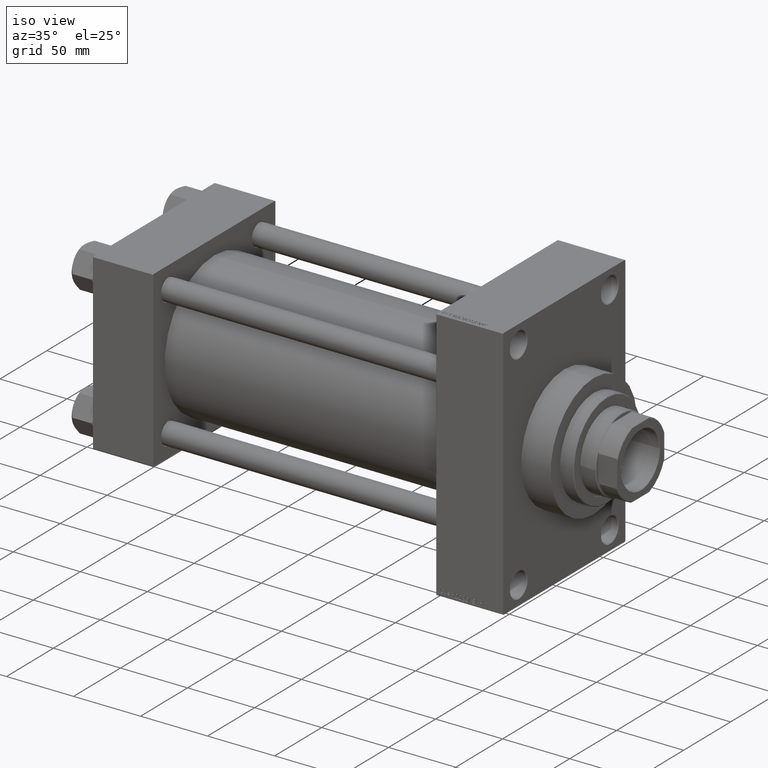
[diagram: clean part render]
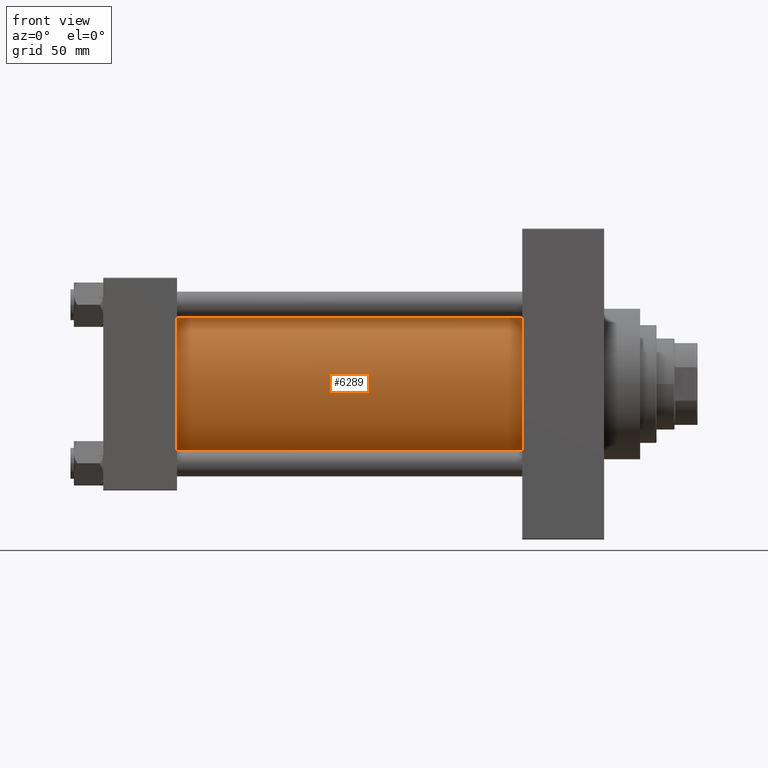
[diagram: tour spotlight — one face highlighted and labeled with its STEP entity id]
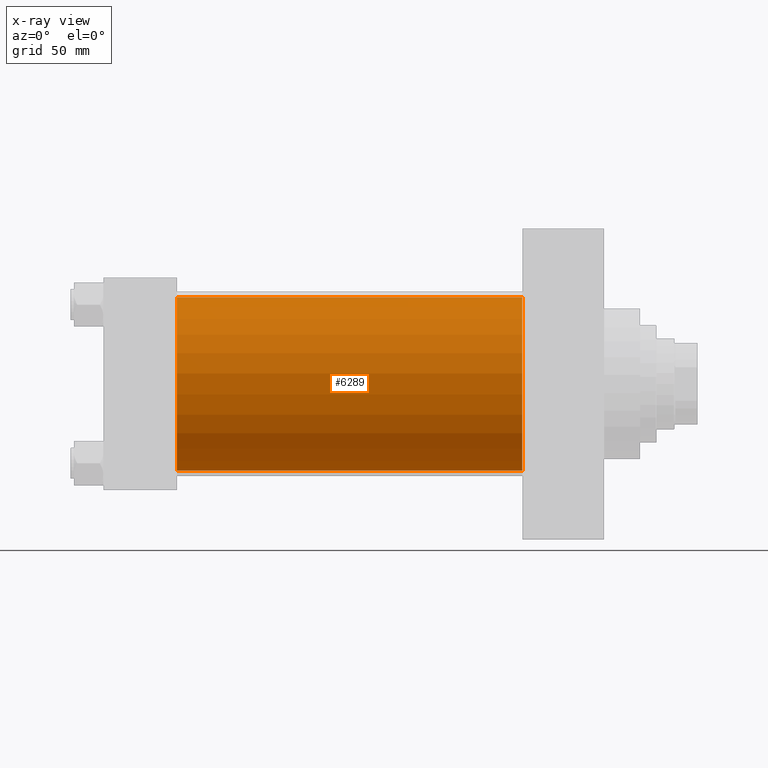
[diagram: x-ray of the same camera — body ghosted, this tour face saturated]
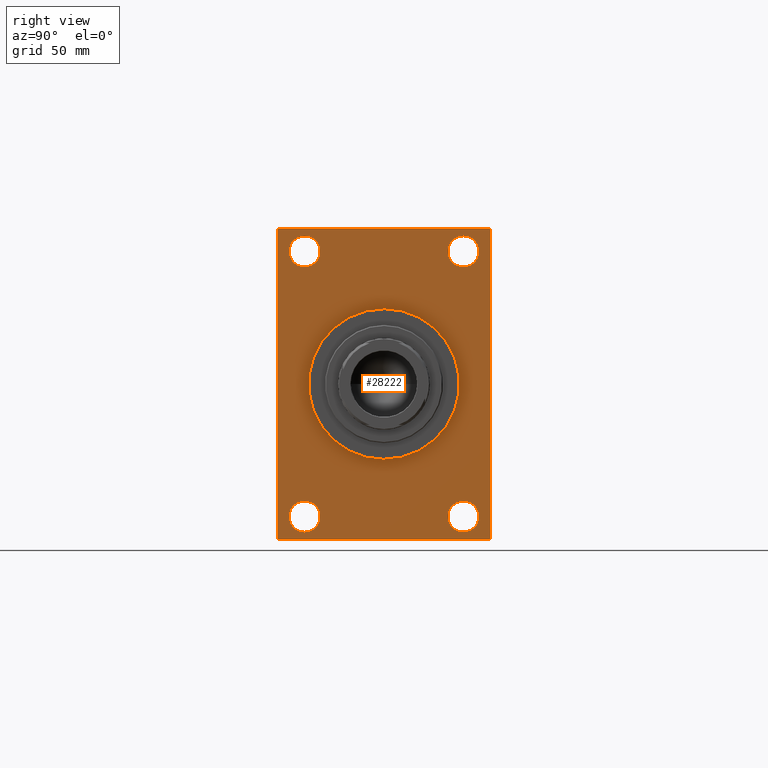
[diagram: tour spotlight — one face highlighted and labeled with its STEP entity id]
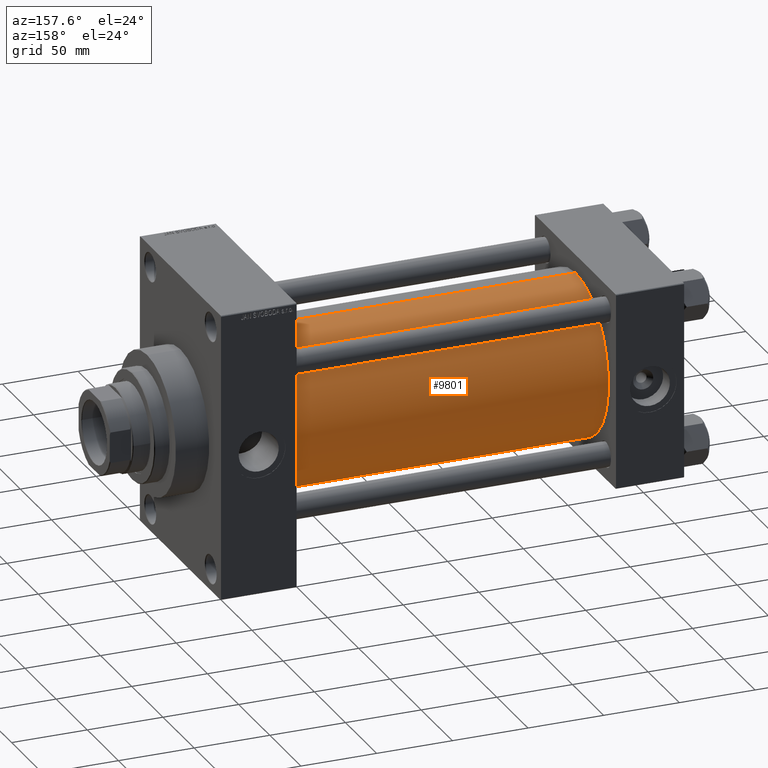
[diagram: tour spotlight — one face highlighted and labeled with its STEP entity id]
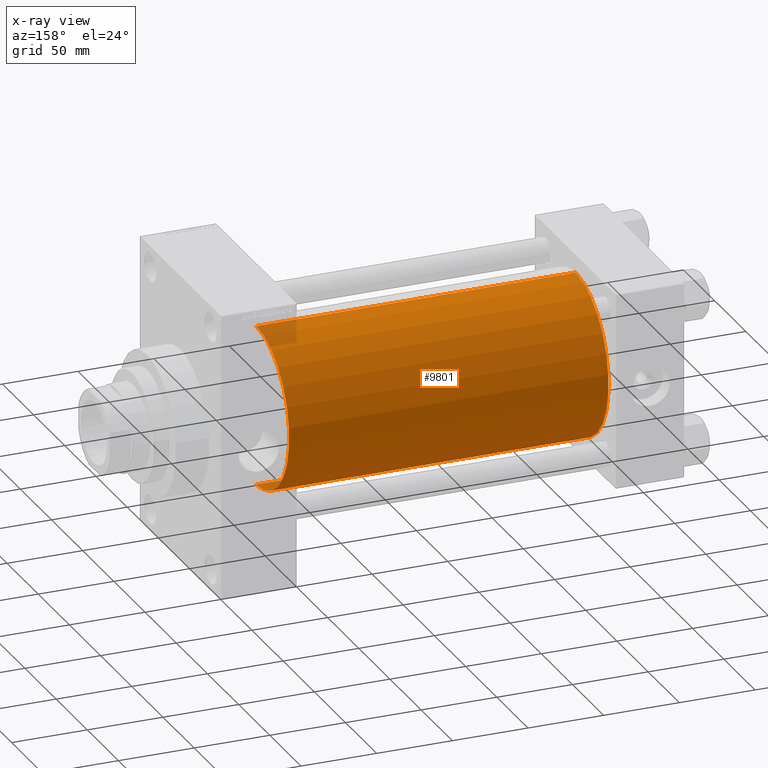
[diagram: x-ray of the same camera — body ghosted, this tour face saturated]
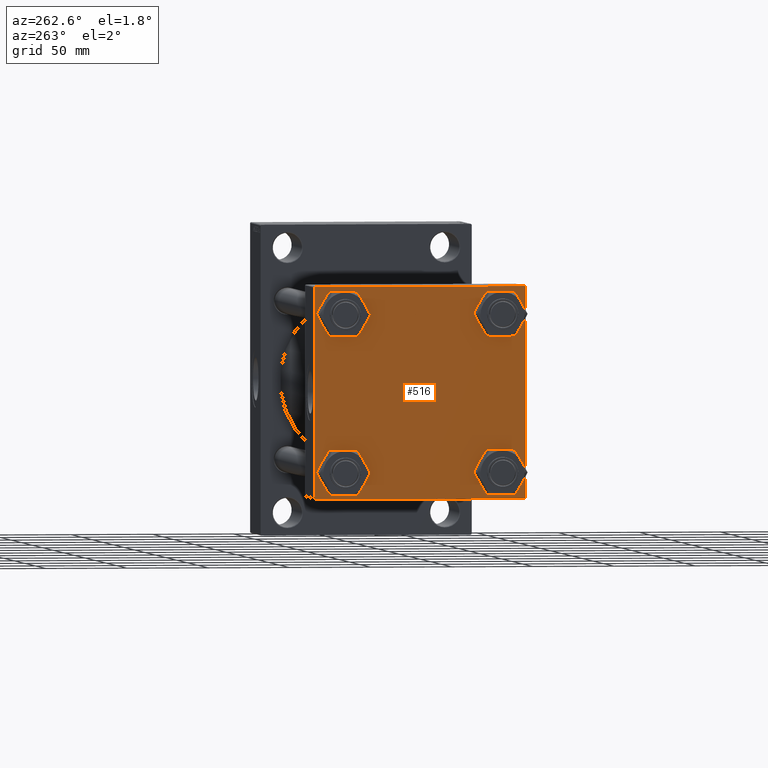
[diagram: tour spotlight — one face highlighted and labeled with its STEP entity id]
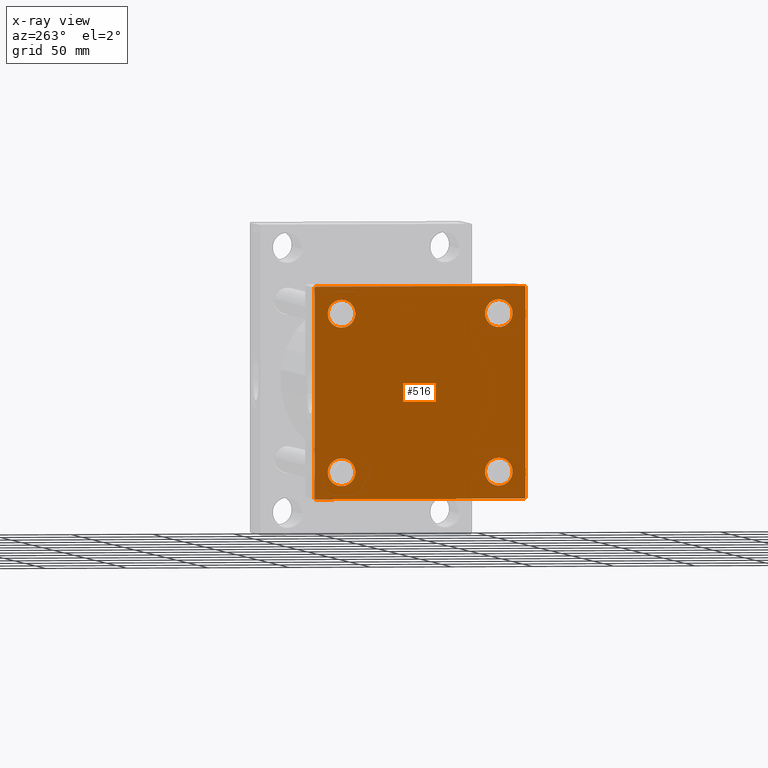
[diagram: x-ray of the same camera — body ghosted, this tour face saturated]
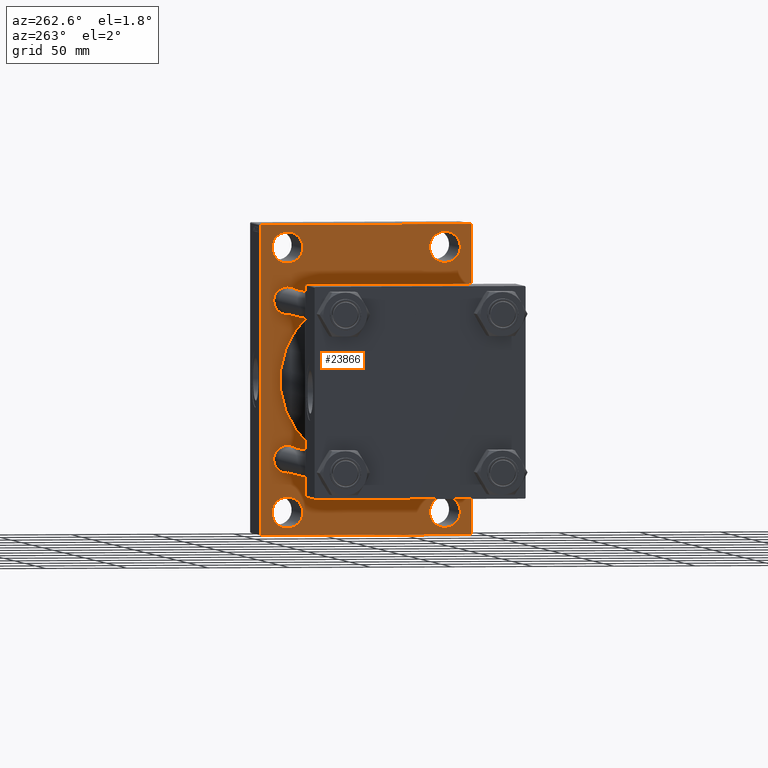
[diagram: tour spotlight — one face highlighted and labeled with its STEP entity id]
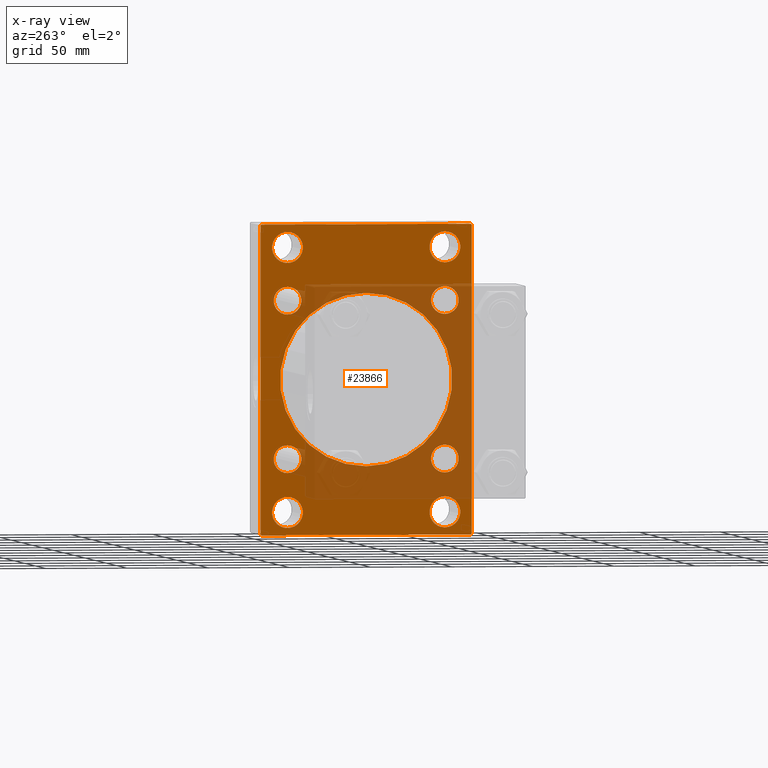
[diagram: x-ray of the same camera — body ghosted, this tour face saturated]
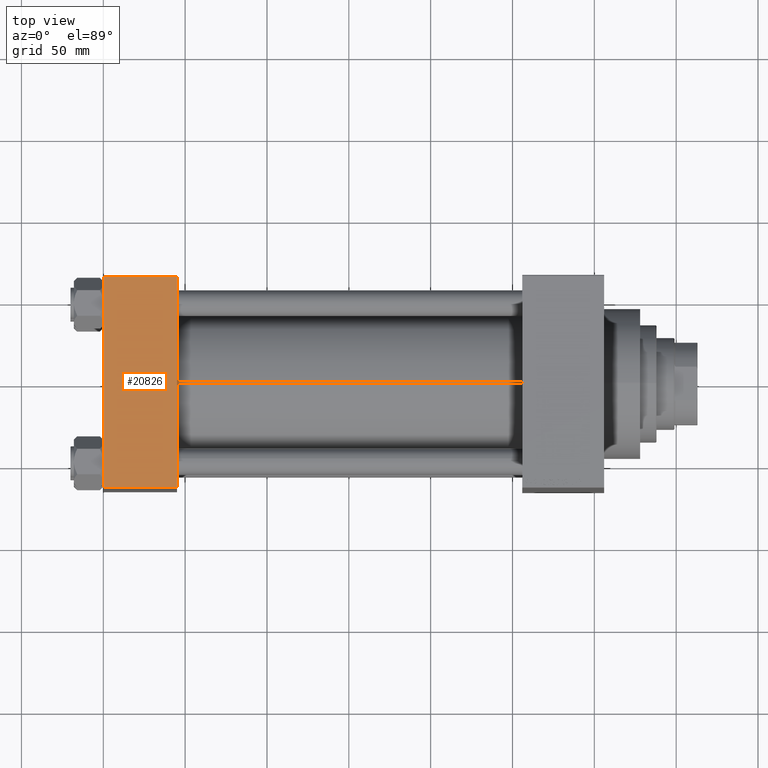
[diagram: tour spotlight — one face highlighted and labeled with its STEP entity id]
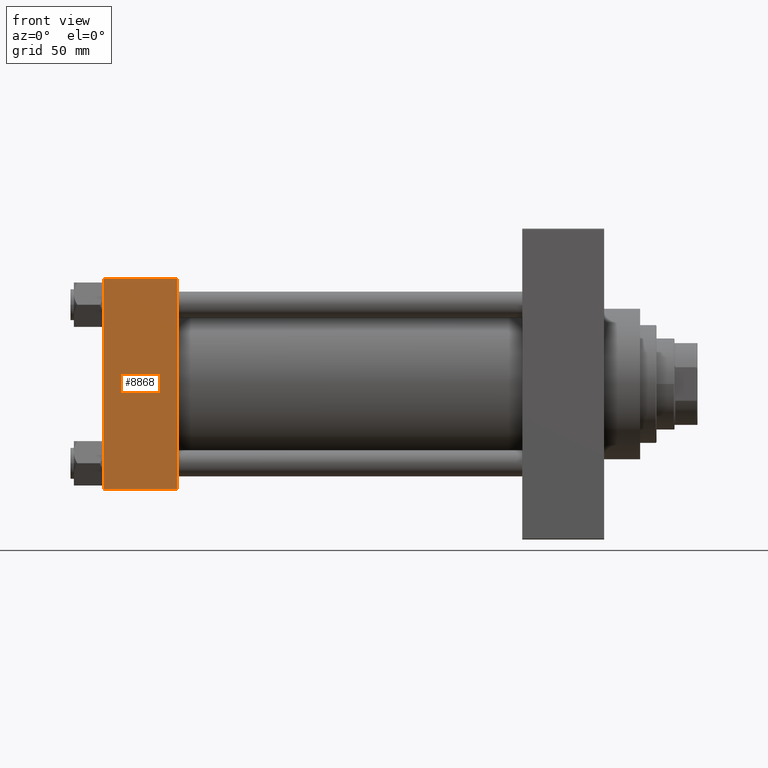
[diagram: tour spotlight — one face highlighted and labeled with its STEP entity id]
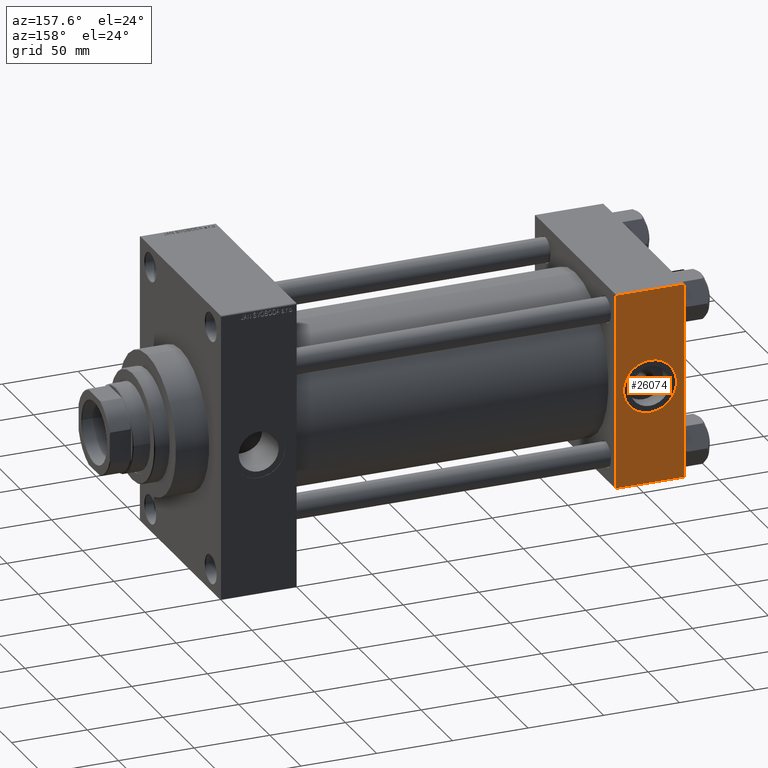
[diagram: tour spotlight — one face highlighted and labeled with its STEP entity id]
A machine part: a face-by-face anatomy tour. The part has 1152 B-rep faces; the first image is the clean iso view, then the 8 largest visible faces are spotlighted one at a time (largest first), each with its STEP entity span.

Face 1 — front view, entity #6289. An x-ray twin of the same camera follows (body ghosted, this face saturated) — the face is partly hidden behind the body. In plain terms, the highlighted cylindrical surface (partial cylindrical patch) has radius 53 mm, axis along (-1, -0, -0).
Definition (entity closure, byte-faithful):
#2746 = VERTEX_POINT ( 'NONE', #25089 ) ;
#3114 = AXIS2_PLACEMENT_3D ( 'NONE', #8935, #9397, #16176 ) ;
#3354 = VECTOR ( 'NONE', #13722, 1000.000000000000000 ) ;
#4373 = EDGE_CURVE ( 'NONE', #2746, #47052, #21291, .T. ) ;
#6289 = ADVANCED_FACE ( 'NONE', ( #8094 ), #33436, .T. ) ;
#6332 = CARTESIAN_POINT ( 'NONE',  ( 256.0000000000000000, 3.888542821515762466E-15, -53.00000000000000711 ) ) ;
#6638 = ORIENTED_EDGE ( 'NONE', *, *, #14897, .F. ) ;
#7947 = CARTESIAN_POINT ( 'NONE',  ( 44.99999999999998579, -2.602085213965210642E-15, 0.000000000000000000 ) ) ;
#8094 = FACE_OUTER_BOUND ( 'NONE', #42523, .T. ) ;
#8935 = CARTESIAN_POINT ( 'NONE',  ( 256.0000000000000000, -2.602085213965210642E-15, 0.000000000000000000 ) ) ;
#9244 = DIRECTION ( 'NONE',  ( -1.000000000000000000, -0.000000000000000000, -0.000000000000000000 ) ) ;
#9397 = DIRECTION ( 'NONE',  ( 1.000000000000000000, 0.000000000000000000, 0.000000000000000000 ) ) ;
#11433 = AXIS2_PLACEMENT_3D ( 'NONE', #44773, #37307, #15079 ) ;
#11921 = ORIENTED_EDGE ( 'NONE', *, *, #19847, .T. ) ;
#13722 = DIRECTION ( 'NONE',  ( -1.000000000000000000, -0.000000000000000000, -0.000000000000000000 ) ) ;
#14897 = EDGE_CURVE ( 'NONE', #42502, #2746, #41672, .T. ) ;
#15079 = DIRECTION ( 'NONE',  ( 0.000000000000000000, 0.000000000000000000, 1.000000000000000000 ) ) ;
#15185 = DIRECTION ( 'NONE',  ( 1.000000000000000000, -0.000000000000000000, 0.000000000000000000 ) ) ;
#16176 = DIRECTION ( 'NONE',  ( 0.000000000000000000, 0.000000000000000000, -1.000000000000000000 ) ) ;
#19847 = EDGE_CURVE ( 'NONE', #25669, #47052, #46470, .T. ) ;
#21291 = LINE ( 'NONE', #6332, #44520 ) ;
#25089 = CARTESIAN_POINT ( 'NONE',  ( 256.0000000000000000, 3.888542821515762466E-15, -53.00000000000000711 ) ) ;
#25299 = EDGE_CURVE ( 'NONE', #42502, #25669, #32794, .T. ) ;
#25669 = VERTEX_POINT ( 'NONE', #44001 ) ;
#28315 = CARTESIAN_POINT ( 'NONE',  ( 44.99999999999998579, 3.888542821515762466E-15, -53.00000000000000711 ) ) ;
#29675 = DIRECTION ( 'NONE',  ( 0.000000000000000000, 0.000000000000000000, 1.000000000000000000 ) ) ;
#31832 = AXIS2_PLACEMENT_3D ( 'NONE', #7947, #15185, #29675 ) ;
#32079 = CARTESIAN_POINT ( 'NONE',  ( 256.0000000000000000, -2.602085213965210642E-15, 53.00000000000000711 ) ) ;
#32794 = LINE ( 'NONE', #32079, #3354 ) ;
#33436 = CYLINDRICAL_SURFACE ( 'NONE', #11433, 53.00000000000000711 ) ;
#33915 = ORIENTED_EDGE ( 'NONE', *, *, #25299, .T. ) ;
#37307 = DIRECTION ( 'NONE',  ( -1.000000000000000000, -0.000000000000000000, -0.000000000000000000 ) ) ;
#37496 = CARTESIAN_POINT ( 'NONE',  ( 256.0000000000000000, -2.602085213965210642E-15, 53.00000000000000711 ) ) ;
#41672 = CIRCLE ( 'NONE', #3114, 53.00000000000000711 ) ;
#42502 = VERTEX_POINT ( 'NONE', #37496 ) ;
#42523 = EDGE_LOOP ( 'NONE', ( #47101, #6638, #33915, #11921 ) ) ;
#44001 = CARTESIAN_POINT ( 'NONE',  ( 44.99999999999998579, -2.602085213965210642E-15, 53.00000000000000711 ) ) ;
#44520 = VECTOR ( 'NONE', #9244, 1000.000000000000000 ) ;
#44773 = CARTESIAN_POINT ( 'NONE',  ( 256.0000000000000000, -2.602085213965210642E-15, 0.000000000000000000 ) ) ;
#46470 = CIRCLE ( 'NONE', #31832, 53.00000000000000711 ) ;
#47052 = VERTEX_POINT ( 'NONE', #28315 ) ;
#47101 = ORIENTED_EDGE ( 'NONE', *, *, #4373, .F. ) ;

Face 2 — right view, entity #28222. In plain terms, the highlighted planar face has unit normal (-1, 0, 0).
Definition (entity closure, byte-faithful):
#170 = VERTEX_POINT ( 'NONE', #27535 ) ;
#254 = DIRECTION ( 'NONE',  ( 0.000000000000000000, 0.000000000000000000, -1.000000000000000000 ) ) ;
#649 = LINE ( 'NONE', #4763, #34190 ) ;
#1003 = EDGE_LOOP ( 'NONE', ( #4739, #9063 ) ) ;
#1043 = AXIS2_PLACEMENT_3D ( 'NONE', #5121, #35529, #9453 ) ;
#1071 = LINE ( 'NONE', #11708, #38016 ) ;
#1554 = VERTEX_POINT ( 'NONE', #16936 ) ;
#1875 = DIRECTION ( 'NONE',  ( 1.000000000000000000, 0.000000000000000000, 0.000000000000000000 ) ) ;
#2059 = CARTESIAN_POINT ( 'NONE',  ( 306.0000000000000000, -65.00000000000001421, 94.49999999999997158 ) ) ;
#2449 = ORIENTED_EDGE ( 'NONE', *, *, #24996, .F. ) ;
#2575 = CARTESIAN_POINT ( 'NONE',  ( 306.0000000000000000, 0.000000000000000000, 0.000000000000000000 ) ) ;
#2727 = CARTESIAN_POINT ( 'NONE',  ( 306.0000000000000000, 48.50000000000000711, -81.00000000000001421 ) ) ;
#3414 = CARTESIAN_POINT ( 'NONE',  ( 306.0000000000000000, -65.00000000000001421, 94.99999999999997158 ) ) ;
#3591 = LINE ( 'NONE', #31920, #3725 ) ;
#3725 = VECTOR ( 'NONE', #18562, 1000.000000000000000 ) ;
#3805 = VERTEX_POINT ( 'NONE', #33836 ) ;
#3996 = EDGE_CURVE ( 'NONE', #21408, #8197, #11490, .T. ) ;
#4087 = CIRCLE ( 'NONE', #28733, 9.500000000000063949 ) ;
#4212 = CARTESIAN_POINT ( 'NONE',  ( 306.0000000000000000, -48.50000000000000000, 81.00000000000000000 ) ) ;
#4243 = CARTESIAN_POINT ( 'NONE',  ( 306.0000000000000000, 64.99999999999998579, -94.50000000000002842 ) ) ;
#4434 = EDGE_CURVE ( 'NONE', #31917, #3805, #7041, .T. ) ;
#4521 = DIRECTION ( 'NONE',  ( 0.000000000000000000, 0.000000000000000000, 1.000000000000000000 ) ) ;
#4645 = CARTESIAN_POINT ( 'NONE',  ( 306.0000000000000000, -48.50000000000000000, 71.49999999999994316 ) ) ;
#4739 = ORIENTED_EDGE ( 'NONE', *, *, #17351, .T. ) ;
#4763 = CARTESIAN_POINT ( 'NONE',  ( 306.0000000000000000, 64.99999999999997158, 94.99999999999997158 ) ) ;
#5121 = CARTESIAN_POINT ( 'NONE',  ( 306.0000000000000000, 0.000000000000000000, 0.000000000000000000 ) ) ;
#5504 = CARTESIAN_POINT ( 'NONE',  ( 306.0000000000000000, 48.50000000000000711, 90.50000000000007105 ) ) ;
#6206 = VECTOR ( 'NONE', #35485, 1000.000000000000000 ) ;
#6263 = AXIS2_PLACEMENT_3D ( 'NONE', #15301, #15055, #14570 ) ;
#6471 = CARTESIAN_POINT ( 'NONE',  ( 306.0000000000000000, -48.49999999999999289, -90.50000000000014211 ) ) ;
#7041 = LINE ( 'NONE', #3414, #32972 ) ;
#7218 = CIRCLE ( 'NONE', #1043, 46.00000000000000000 ) ;
#7453 = CARTESIAN_POINT ( 'NONE',  ( 306.0000000000000000, 48.50000000000000711, -90.50000000000014211 ) ) ;
#7528 = PLANE ( 'NONE',  #33527 ) ;
#7544 = DIRECTION ( 'NONE',  ( -1.000000000000000000, 0.000000000000000000, -0.000000000000000000 ) ) ;
#8165 = CARTESIAN_POINT ( 'NONE',  ( 306.0000000000000000, 48.50000000000000711, 81.00000000000000000 ) ) ;
#8197 = VERTEX_POINT ( 'NONE', #36110 ) ;
#8435 = EDGE_LOOP ( 'NONE', ( #13088, #11905, #33545, #16725, #34198, #44512, #19108, #37918 ) ) ;
#8766 = AXIS2_PLACEMENT_3D ( 'NONE', #19260, #33992, #38099 ) ;
#8933 = AXIS2_PLACEMENT_3D ( 'NONE', #2575, #1875, #34970 ) ;
#9063 = ORIENTED_EDGE ( 'NONE', *, *, #39345, .T. ) ;
#9103 = CARTESIAN_POINT ( 'NONE',  ( 306.0000000000000000, -65.00000000000001421, 94.49999999999997158 ) ) ;
#9231 = CARTESIAN_POINT ( 'NONE',  ( 306.0000000000000000, -64.50000000000001421, -95.00000000000002842 ) ) ;
#9453 = DIRECTION ( 'NONE',  ( 0.000000000000000000, 0.000000000000000000, -1.000000000000000000 ) ) ;
#9832 = EDGE_CURVE ( 'NONE', #16287, #170, #3591, .T. ) ;
#9997 = VERTEX_POINT ( 'NONE', #5504 ) ;
#10639 = ORIENTED_EDGE ( 'NONE', *, *, #36799, .T. ) ;
#11152 = FACE_BOUND ( 'NONE', #14469, .T. ) ;
#11490 = LINE ( 'NONE', #4243, #42974 ) ;
#11615 = ORIENTED_EDGE ( 'NONE', *, *, #45539, .F. ) ;
#11708 = CARTESIAN_POINT ( 'NONE',  ( 306.0000000000000000, 64.99999999999998579, -95.00000000000001421 ) ) ;
#11905 = ORIENTED_EDGE ( 'NONE', *, *, #30491, .T. ) ;
#12002 = CARTESIAN_POINT ( 'NONE',  ( 306.0000000000000000, 48.50000000000000711, 71.49999999999994316 ) ) ;
#12257 = DIRECTION ( 'NONE',  ( -1.000000000000000000, 0.000000000000000000, -0.000000000000000000 ) ) ;
#13088 = ORIENTED_EDGE ( 'NONE', *, *, #4434, .T. ) ;
#13768 = CARTESIAN_POINT ( 'NONE',  ( 306.0000000000000000, 48.50000000000000711, -81.00000000000001421 ) ) ;
#14227 = VECTOR ( 'NONE', #43571, 1000.000000000000114 ) ;
#14469 = EDGE_LOOP ( 'NONE', ( #11615, #2449 ) ) ;
#14570 = DIRECTION ( 'NONE',  ( 0.000000000000000000, 0.000000000000000000, 1.000000000000000000 ) ) ;
#14773 = FACE_BOUND ( 'NONE', #1003, .T. ) ;
#15055 = DIRECTION ( 'NONE',  ( -1.000000000000000000, 0.000000000000000000, -0.000000000000000000 ) ) ;
#15249 = EDGE_CURVE ( 'NONE', #23255, #41221, #32041, .T. ) ;
#15301 = CARTESIAN_POINT ( 'NONE',  ( 306.0000000000000000, -48.50000000000000000, 81.00000000000000000 ) ) ;
#15781 = VERTEX_POINT ( 'NONE', #22906 ) ;
#16287 = VERTEX_POINT ( 'NONE', #24250 ) ;
#16725 = ORIENTED_EDGE ( 'NONE', *, *, #3996, .T. ) ;
#16936 = CARTESIAN_POINT ( 'NONE',  ( 306.0000000000000000, -48.50000000000000000, 90.50000000000007105 ) ) ;
#17128 = ORIENTED_EDGE ( 'NONE', *, *, #25806, .T. ) ;
#17129 = AXIS2_PLACEMENT_3D ( 'NONE', #13768, #23933, #39371 ) ;
#17220 = CIRCLE ( 'NONE', #26475, 9.500000000000063949 ) ;
#17351 = EDGE_CURVE ( 'NONE', #22359, #1554, #27087, .T. ) ;
#17509 = LINE ( 'NONE', #2059, #14227 ) ;
#17653 = EDGE_CURVE ( 'NONE', #19164, #15781, #37949, .T. ) ;
#18562 = DIRECTION ( 'NONE',  ( 0.000000000000000000, -0.7071067811865868746, 0.7071067811865081598 ) ) ;
#18795 = VERTEX_POINT ( 'NONE', #20569 ) ;
#19108 = ORIENTED_EDGE ( 'NONE', *, *, #21686, .T. ) ;
#19164 = VERTEX_POINT ( 'NONE', #7453 ) ;
#19260 = CARTESIAN_POINT ( 'NONE',  ( 306.0000000000000000, 48.50000000000000711, 81.00000000000000000 ) ) ;
#19282 = EDGE_LOOP ( 'NONE', ( #43551, #10639 ) ) ;
#19674 = DIRECTION ( 'NONE',  ( 0.000000000000000000, -1.000000000000000000, -1.067522139062650425E-16 ) ) ;
#20569 = CARTESIAN_POINT ( 'NONE',  ( 306.0000000000000000, -64.50000000000001421, -95.00000000000002842 ) ) ;
#20645 = EDGE_LOOP ( 'NONE', ( #42490, #35085 ) ) ;
#21408 = VERTEX_POINT ( 'NONE', #37002 ) ;
#21686 = EDGE_CURVE ( 'NONE', #170, #29606, #649, .T. ) ;
#21780 = FACE_BOUND ( 'NONE', #19282, .T. ) ;
#22265 = DIRECTION ( 'NONE',  ( 0.000000000000000000, 0.000000000000000000, 1.000000000000000000 ) ) ;
#22359 = VERTEX_POINT ( 'NONE', #4645 ) ;
#22906 = CARTESIAN_POINT ( 'NONE',  ( 306.0000000000000000, 48.50000000000000711, -71.49999999999990052 ) ) ;
#23255 = VERTEX_POINT ( 'NONE', #6471 ) ;
#23933 = DIRECTION ( 'NONE',  ( -1.000000000000000000, 0.000000000000000000, -0.000000000000000000 ) ) ;
#24250 = CARTESIAN_POINT ( 'NONE',  ( 306.0000000000000000, 64.99999999999997158, 94.50000000000002842 ) ) ;
#24658 = EDGE_CURVE ( 'NONE', #21408, #18795, #1071, .T. ) ;
#24996 = EDGE_CURVE ( 'NONE', #46096, #27353, #7218, .T. ) ;
#25416 = DIRECTION ( 'NONE',  ( -1.000000000000000000, 0.000000000000000000, -0.000000000000000000 ) ) ;
#25806 = EDGE_CURVE ( 'NONE', #41221, #23255, #47289, .T. ) ;
#25982 = DIRECTION ( 'NONE',  ( -0.000000000000000000, 0.7071067811865573427, 0.7071067811865378028 ) ) ;
#26475 = AXIS2_PLACEMENT_3D ( 'NONE', #8165, #12257, #4521 ) ;
#26875 = DIRECTION ( 'NONE',  ( 0.000000000000000000, 0.000000000000000000, 1.000000000000000000 ) ) ;
#27087 = CIRCLE ( 'NONE', #6263, 9.500000000000063949 ) ;
#27353 = VERTEX_POINT ( 'NONE', #29988 ) ;
#27535 = CARTESIAN_POINT ( 'NONE',  ( 306.0000000000000000, 64.49999999999997158, 94.99999999999997158 ) ) ;
#27654 = VERTEX_POINT ( 'NONE', #12002 ) ;
#27813 = VECTOR ( 'NONE', #35311, 1000.000000000000000 ) ;
#28222 = ADVANCED_FACE ( 'NONE', ( #14773, #47364, #21780, #44225, #11152, #43514 ), #7528, .F. ) ;
#28587 = AXIS2_PLACEMENT_3D ( 'NONE', #40633, #7544, #22265 ) ;
#28733 = AXIS2_PLACEMENT_3D ( 'NONE', #4212, #29825, #33926 ) ;
#29033 = DIRECTION ( 'NONE',  ( -1.000000000000000000, 0.000000000000000000, -0.000000000000000000 ) ) ;
#29495 = EDGE_CURVE ( 'NONE', #16287, #8197, #31618, .T. ) ;
#29606 = VERTEX_POINT ( 'NONE', #41016 ) ;
#29825 = DIRECTION ( 'NONE',  ( -1.000000000000000000, 0.000000000000000000, -0.000000000000000000 ) ) ;
#29988 = CARTESIAN_POINT ( 'NONE',  ( 306.0000000000000000, 0.000000000000000000, 46.00000000000000000 ) ) ;
#30097 = EDGE_LOOP ( 'NONE', ( #37393, #17128 ) ) ;
#30491 = EDGE_CURVE ( 'NONE', #3805, #18795, #31213, .T. ) ;
#30737 = CARTESIAN_POINT ( 'NONE',  ( 306.0000000000000000, -48.49999999999999289, -81.00000000000001421 ) ) ;
#31213 = LINE ( 'NONE', #9231, #27813 ) ;
#31618 = LINE ( 'NONE', #36193, #6206 ) ;
#31917 = VERTEX_POINT ( 'NONE', #9103 ) ;
#31920 = CARTESIAN_POINT ( 'NONE',  ( 306.0000000000000000, 64.49999999999997158, 94.99999999999997158 ) ) ;
#31955 = DIRECTION ( 'NONE',  ( 0.000000000000000000, 0.000000000000000000, 1.000000000000000000 ) ) ;
#32041 = CIRCLE ( 'NONE', #28587, 9.500000000000119016 ) ;
#32972 = VECTOR ( 'NONE', #254, 1000.000000000000000 ) ;
#33527 = AXIS2_PLACEMENT_3D ( 'NONE', #47601, #29033, #36525 ) ;
#33545 = ORIENTED_EDGE ( 'NONE', *, *, #24658, .F. ) ;
#33836 = CARTESIAN_POINT ( 'NONE',  ( 306.0000000000000000, -65.00000000000001421, -94.50000000000008527 ) ) ;
#33926 = DIRECTION ( 'NONE',  ( 0.000000000000000000, 0.000000000000000000, 1.000000000000000000 ) ) ;
#33992 = DIRECTION ( 'NONE',  ( -1.000000000000000000, 0.000000000000000000, -0.000000000000000000 ) ) ;
#34091 = AXIS2_PLACEMENT_3D ( 'NONE', #2727, #25416, #31955 ) ;
#34190 = VECTOR ( 'NONE', #45088, 1000.000000000000000 ) ;
#34198 = ORIENTED_EDGE ( 'NONE', *, *, #29495, .F. ) ;
#34970 = DIRECTION ( 'NONE',  ( 0.000000000000000000, 0.000000000000000000, -1.000000000000000000 ) ) ;
#35085 = ORIENTED_EDGE ( 'NONE', *, *, #40254, .T. ) ;
#35311 = DIRECTION ( 'NONE',  ( 0.000000000000000000, 0.7071067811865868746, -0.7071067811865081598 ) ) ;
#35485 = DIRECTION ( 'NONE',  ( 0.000000000000000000, 7.304098846218135653E-17, -1.000000000000000000 ) ) ;
#35529 = DIRECTION ( 'NONE',  ( 1.000000000000000000, 0.000000000000000000, 0.000000000000000000 ) ) ;
#36110 = CARTESIAN_POINT ( 'NONE',  ( 306.0000000000000000, 64.99999999999998579, -94.50000000000002842 ) ) ;
#36193 = CARTESIAN_POINT ( 'NONE',  ( 306.0000000000000000, 64.99999999999997158, 94.99999999999997158 ) ) ;
#36525 = DIRECTION ( 'NONE',  ( -0.000000000000000000, 0.000000000000000000, 1.000000000000000000 ) ) ;
#36799 = EDGE_CURVE ( 'NONE', #15781, #19164, #40251, .T. ) ;
#37002 = CARTESIAN_POINT ( 'NONE',  ( 306.0000000000000000, 64.49999999999998579, -95.00000000000001421 ) ) ;
#37393 = ORIENTED_EDGE ( 'NONE', *, *, #15249, .T. ) ;
#37918 = ORIENTED_EDGE ( 'NONE', *, *, #43582, .T. ) ;
#37949 = CIRCLE ( 'NONE', #34091, 9.500000000000119016 ) ;
#38016 = VECTOR ( 'NONE', #19674, 1000.000000000000000 ) ;
#38099 = DIRECTION ( 'NONE',  ( 0.000000000000000000, 0.000000000000000000, 1.000000000000000000 ) ) ;
#38830 = AXIS2_PLACEMENT_3D ( 'NONE', #30737, #44491, #26875 ) ;
#39345 = EDGE_CURVE ( 'NONE', #1554, #22359, #4087, .T. ) ;
#39371 = DIRECTION ( 'NONE',  ( 0.000000000000000000, 0.000000000000000000, 1.000000000000000000 ) ) ;
#40251 = CIRCLE ( 'NONE', #17129, 9.500000000000119016 ) ;
#40254 = EDGE_CURVE ( 'NONE', #9997, #27654, #17220, .T. ) ;
#40323 = EDGE_CURVE ( 'NONE', #27654, #9997, #40358, .T. ) ;
#40358 = CIRCLE ( 'NONE', #8766, 9.500000000000063949 ) ;
#40533 = CIRCLE ( 'NONE', #8933, 46.00000000000000000 ) ;
#40633 = CARTESIAN_POINT ( 'NONE',  ( 306.0000000000000000, -48.49999999999999289, -81.00000000000001421 ) ) ;
#41016 = CARTESIAN_POINT ( 'NONE',  ( 306.0000000000000000, -64.50000000000008527, 94.99999999999997158 ) ) ;
#41221 = VERTEX_POINT ( 'NONE', #41258 ) ;
#41258 = CARTESIAN_POINT ( 'NONE',  ( 306.0000000000000000, -48.49999999999999289, -71.49999999999990052 ) ) ;
#41405 = CARTESIAN_POINT ( 'NONE',  ( 306.0000000000000000, 5.633375276077824704E-15, -46.00000000000000000 ) ) ;
#42490 = ORIENTED_EDGE ( 'NONE', *, *, #40323, .T. ) ;
#42974 = VECTOR ( 'NONE', #25982, 1000.000000000000000 ) ;
#43514 = FACE_OUTER_BOUND ( 'NONE', #8435, .T. ) ;
#43551 = ORIENTED_EDGE ( 'NONE', *, *, #17653, .T. ) ;
#43571 = DIRECTION ( 'NONE',  ( -0.000000000000000000, -0.7071067811864985009, -0.7071067811865965336 ) ) ;
#43582 = EDGE_CURVE ( 'NONE', #29606, #31917, #17509, .T. ) ;
#44225 = FACE_BOUND ( 'NONE', #20645, .T. ) ;
#44491 = DIRECTION ( 'NONE',  ( -1.000000000000000000, 0.000000000000000000, -0.000000000000000000 ) ) ;
#44512 = ORIENTED_EDGE ( 'NONE', *, *, #9832, .T. ) ;
#45088 = DIRECTION ( 'NONE',  ( 0.000000000000000000, -1.000000000000000000, 0.000000000000000000 ) ) ;
#45539 = EDGE_CURVE ( 'NONE', #27353, #46096, #40533, .T. ) ;
#46096 = VERTEX_POINT ( 'NONE', #41405 ) ;
#47289 = CIRCLE ( 'NONE', #38830, 9.500000000000119016 ) ;
#47364 = FACE_BOUND ( 'NONE', #30097, .T. ) ;
#47601 = CARTESIAN_POINT ( 'NONE',  ( 306.0000000000000000, 0.000000000000000000, 0.000000000000000000 ) ) ;

Face 3 — auxiliary view, entity #9801. An x-ray twin of the same camera follows (body ghosted, this face saturated) — the face is partly hidden behind the body. In plain terms, the highlighted cylindrical surface (partial cylindrical patch) has radius 53 mm, axis along (-1, -0, -0).
Definition (entity closure, byte-faithful):
#2155 = AXIS2_PLACEMENT_3D ( 'NONE', #34086, #5327, #41092 ) ;
#2746 = VERTEX_POINT ( 'NONE', #25089 ) ;
#3354 = VECTOR ( 'NONE', #13722, 1000.000000000000000 ) ;
#4373 = EDGE_CURVE ( 'NONE', #2746, #47052, #21291, .T. ) ;
#4576 = EDGE_CURVE ( 'NONE', #47052, #25669, #12176, .T. ) ;
#5327 = DIRECTION ( 'NONE',  ( 1.000000000000000000, -0.000000000000000000, 0.000000000000000000 ) ) ;
#5849 = ORIENTED_EDGE ( 'NONE', *, *, #25299, .F. ) ;
#6302 = AXIS2_PLACEMENT_3D ( 'NONE', #22697, #8455, #37432 ) ;
#6332 = CARTESIAN_POINT ( 'NONE',  ( 256.0000000000000000, 3.888542821515762466E-15, -53.00000000000000711 ) ) ;
#6548 = ORIENTED_EDGE ( 'NONE', *, *, #4373, .T. ) ;
#8455 = DIRECTION ( 'NONE',  ( 1.000000000000000000, 0.000000000000000000, 0.000000000000000000 ) ) ;
#9244 = DIRECTION ( 'NONE',  ( -1.000000000000000000, -0.000000000000000000, -0.000000000000000000 ) ) ;
#9801 = ADVANCED_FACE ( 'NONE', ( #24445 ), #39174, .T. ) ;
#12176 = CIRCLE ( 'NONE', #2155, 53.00000000000000711 ) ;
#13722 = DIRECTION ( 'NONE',  ( -1.000000000000000000, -0.000000000000000000, -0.000000000000000000 ) ) ;
#14575 = EDGE_LOOP ( 'NONE', ( #38004, #6548, #34317, #5849 ) ) ;
#21291 = LINE ( 'NONE', #6332, #44520 ) ;
#22697 = CARTESIAN_POINT ( 'NONE',  ( 256.0000000000000000, -2.602085213965210642E-15, 0.000000000000000000 ) ) ;
#24445 = FACE_OUTER_BOUND ( 'NONE', #14575, .T. ) ;
#25089 = CARTESIAN_POINT ( 'NONE',  ( 256.0000000000000000, 3.888542821515762466E-15, -53.00000000000000711 ) ) ;
#25299 = EDGE_CURVE ( 'NONE', #42502, #25669, #32794, .T. ) ;
#25669 = VERTEX_POINT ( 'NONE', #44001 ) ;
#28301 = DIRECTION ( 'NONE',  ( 0.000000000000000000, 0.000000000000000000, 1.000000000000000000 ) ) ;
#28315 = CARTESIAN_POINT ( 'NONE',  ( 44.99999999999998579, 3.888542821515762466E-15, -53.00000000000000711 ) ) ;
#29198 = DIRECTION ( 'NONE',  ( -1.000000000000000000, -0.000000000000000000, -0.000000000000000000 ) ) ;
#31733 = CIRCLE ( 'NONE', #6302, 53.00000000000000711 ) ;
#32079 = CARTESIAN_POINT ( 'NONE',  ( 256.0000000000000000, -2.602085213965210642E-15, 53.00000000000000711 ) ) ;
#32794 = LINE ( 'NONE', #32079, #3354 ) ;
#34086 = CARTESIAN_POINT ( 'NONE',  ( 44.99999999999998579, -2.602085213965210642E-15, 0.000000000000000000 ) ) ;
#34317 = ORIENTED_EDGE ( 'NONE', *, *, #4576, .T. ) ;
#36054 = EDGE_CURVE ( 'NONE', #2746, #42502, #31733, .T. ) ;
#37432 = DIRECTION ( 'NONE',  ( 0.000000000000000000, 0.000000000000000000, -1.000000000000000000 ) ) ;
#37496 = CARTESIAN_POINT ( 'NONE',  ( 256.0000000000000000, -2.602085213965210642E-15, 53.00000000000000711 ) ) ;
#38004 = ORIENTED_EDGE ( 'NONE', *, *, #36054, .F. ) ;
#39174 = CYLINDRICAL_SURFACE ( 'NONE', #40006, 53.00000000000000711 ) ;
#40006 = AXIS2_PLACEMENT_3D ( 'NONE', #43025, #29198, #28301 ) ;
#41092 = DIRECTION ( 'NONE',  ( 0.000000000000000000, 0.000000000000000000, 1.000000000000000000 ) ) ;
#42502 = VERTEX_POINT ( 'NONE', #37496 ) ;
#43025 = CARTESIAN_POINT ( 'NONE',  ( 256.0000000000000000, -2.602085213965210642E-15, 0.000000000000000000 ) ) ;
#44001 = CARTESIAN_POINT ( 'NONE',  ( 44.99999999999998579, -2.602085213965210642E-15, 53.00000000000000711 ) ) ;
#44520 = VECTOR ( 'NONE', #9244, 1000.000000000000000 ) ;
#47052 = VERTEX_POINT ( 'NONE', #28315 ) ;

Face 4 — auxiliary view, entity #516. An x-ray twin of the same camera follows (body ghosted, this face saturated) — the face is partly hidden behind the body. In plain terms, the highlighted planar face has unit normal (-1, 0, 0).
Definition (entity closure, byte-faithful):
#97 = CIRCLE ( 'NONE', #26338, 8.500000000000007105 ) ;
#516 = ADVANCED_FACE ( 'NONE', ( #21823, #3469, #32694, #44025, #32452 ), #39939, .T. ) ;
#595 = AXIS2_PLACEMENT_3D ( 'NONE', #36458, #21474, #39838 ) ;
#834 = CARTESIAN_POINT ( 'NONE',  ( 0.000000000000000000, 65.00000000000000000, 65.00000000000001421 ) ) ;
#1608 = VECTOR ( 'NONE', #23559, 1000.000000000000114 ) ;
#1731 = VECTOR ( 'NONE', #27909, 1000.000000000000000 ) ;
#1837 = EDGE_CURVE ( 'NONE', #34546, #44266, #15944, .T. ) ;
#2088 = CIRCLE ( 'NONE', #40631, 8.500000000000007105 ) ;
#2526 = CIRCLE ( 'NONE', #35714, 8.500000000000007105 ) ;
#2626 = ORIENTED_EDGE ( 'NONE', *, *, #29102, .T. ) ;
#2700 = EDGE_CURVE ( 'NONE', #3671, #37372, #2088, .T. ) ;
#2977 = CARTESIAN_POINT ( 'NONE',  ( 0.000000000000000000, -48.44999999999999574, 48.45000000000003126 ) ) ;
#3288 = CARTESIAN_POINT ( 'NONE',  ( 0.000000000000000000, -48.44999999999999574, 39.95000000000001705 ) ) ;
#3469 = FACE_BOUND ( 'NONE', #45633, .T. ) ;
#3671 = VERTEX_POINT ( 'NONE', #17664 ) ;
#3842 = DIRECTION ( 'NONE',  ( 0.000000000000000000, 0.000000000000000000, -1.000000000000000000 ) ) ;
#3926 = DIRECTION ( 'NONE',  ( 0.000000000000000000, 0.000000000000000000, 1.000000000000000000 ) ) ;
#4219 = LINE ( 'NONE', #834, #42789 ) ;
#4692 = EDGE_CURVE ( 'NONE', #9121, #37654, #45320, .T. ) ;
#4775 = ORIENTED_EDGE ( 'NONE', *, *, #4692, .T. ) ;
#4968 = LINE ( 'NONE', #34899, #1608 ) ;
#5498 = ORIENTED_EDGE ( 'NONE', *, *, #40022, .T. ) ;
#5536 = CARTESIAN_POINT ( 'NONE',  ( 0.000000000000000000, 48.45000000000000995, 48.45000000000001705 ) ) ;
#6157 = ORIENTED_EDGE ( 'NONE', *, *, #23533, .T. ) ;
#6427 = ORIENTED_EDGE ( 'NONE', *, *, #30216, .T. ) ;
#6447 = LINE ( 'NONE', #40475, #19166 ) ;
#7390 = DIRECTION ( 'NONE',  ( 0.000000000000000000, 0.7071067811865474617, -0.7071067811865474617 ) ) ;
#7745 = VERTEX_POINT ( 'NONE', #25059 ) ;
#8538 = VECTOR ( 'NONE', #17711, 1000.000000000000000 ) ;
#8672 = VERTEX_POINT ( 'NONE', #24416 ) ;
#8755 = DIRECTION ( 'NONE',  ( 0.000000000000000000, 0.000000000000000000, 1.000000000000000000 ) ) ;
#9053 = EDGE_CURVE ( 'NONE', #8672, #39842, #6447, .T. ) ;
#9121 = VERTEX_POINT ( 'NONE', #3288 ) ;
#9663 = VERTEX_POINT ( 'NONE', #26415 ) ;
#10351 = DIRECTION ( 'NONE',  ( 0.000000000000000000, 0.000000000000000000, 1.000000000000000000 ) ) ;
#10793 = CARTESIAN_POINT ( 'NONE',  ( 0.000000000000000000, -48.44999999999999574, -56.95000000000003837 ) ) ;
#11502 = CARTESIAN_POINT ( 'NONE',  ( 0.000000000000000000, 48.45000000000000995, 56.95000000000002416 ) ) ;
#11683 = CARTESIAN_POINT ( 'NONE',  ( 0.000000000000000000, -48.44999999999999574, -39.95000000000001705 ) ) ;
#12197 = DIRECTION ( 'NONE',  ( 0.000000000000000000, 0.000000000000000000, -1.000000000000000000 ) ) ;
#12317 = DIRECTION ( 'NONE',  ( 1.000000000000000000, -0.000000000000000000, 0.000000000000000000 ) ) ;
#13762 = CARTESIAN_POINT ( 'NONE',  ( 0.000000000000000000, 65.00000000000000000, -64.49999999999995737 ) ) ;
#13962 = VERTEX_POINT ( 'NONE', #22163 ) ;
#14867 = EDGE_CURVE ( 'NONE', #37372, #3671, #36278, .T. ) ;
#15021 = ORIENTED_EDGE ( 'NONE', *, *, #39712, .T. ) ;
#15047 = CARTESIAN_POINT ( 'NONE',  ( -0.000000000000000000, -64.74999999999819522, 64.75000000000179057 ) ) ;
#15944 = CIRCLE ( 'NONE', #35991, 8.500000000000007105 ) ;
#16003 = DIRECTION ( 'NONE',  ( 0.000000000000000000, -1.000000000000000000, -1.067522139062650425E-16 ) ) ;
#17133 = CARTESIAN_POINT ( 'NONE',  ( 0.000000000000000000, 48.45000000000000995, 48.45000000000001705 ) ) ;
#17255 = DIRECTION ( 'NONE',  ( -1.000000000000000000, 0.000000000000000000, -0.000000000000000000 ) ) ;
#17275 = LINE ( 'NONE', #19950, #1731 ) ;
#17664 = CARTESIAN_POINT ( 'NONE',  ( 0.000000000000000000, 48.45000000000000995, 39.95000000000000284 ) ) ;
#17711 = DIRECTION ( 'NONE',  ( -0.000000000000000000, 0.7071067811865672237, 0.7071067811865279218 ) ) ;
#17852 = ORIENTED_EDGE ( 'NONE', *, *, #20534, .F. ) ;
#18425 = DIRECTION ( 'NONE',  ( 1.000000000000000000, -0.000000000000000000, 0.000000000000000000 ) ) ;
#19166 = VECTOR ( 'NONE', #7390, 1000.000000000000114 ) ;
#19870 = ORIENTED_EDGE ( 'NONE', *, *, #35673, .T. ) ;
#19950 = CARTESIAN_POINT ( 'NONE',  ( 0.000000000000000000, 65.00000000000000000, -64.99999999999998579 ) ) ;
#20281 = DIRECTION ( 'NONE',  ( 1.000000000000000000, -0.000000000000000000, 0.000000000000000000 ) ) ;
#20499 = CARTESIAN_POINT ( 'NONE',  ( 0.000000000000000000, 48.45000000000000995, -48.45000000000001705 ) ) ;
#20534 = EDGE_CURVE ( 'NONE', #26103, #13962, #22197, .T. ) ;
#21346 = DIRECTION ( 'NONE',  ( -0.000000000000000000, 0.000000000000000000, 1.000000000000000000 ) ) ;
#21468 = ORIENTED_EDGE ( 'NONE', *, *, #46496, .T. ) ;
#21474 = DIRECTION ( 'NONE',  ( 1.000000000000000000, -0.000000000000000000, 0.000000000000000000 ) ) ;
#21823 = FACE_BOUND ( 'NONE', #34530, .T. ) ;
#21838 = CIRCLE ( 'NONE', #34958, 8.500000000000007105 ) ;
#22148 = CARTESIAN_POINT ( 'NONE',  ( 0.000000000000000000, -64.49999999999994316, -65.00000000000000000 ) ) ;
#22163 = CARTESIAN_POINT ( 'NONE',  ( 0.000000000000000000, -65.00000000000000000, -64.49999999999991473 ) ) ;
#22197 = LINE ( 'NONE', #36944, #32588 ) ;
#22352 = EDGE_CURVE ( 'NONE', #8672, #7745, #27104, .T. ) ;
#23179 = CIRCLE ( 'NONE', #43211, 8.500000000000007105 ) ;
#23533 = EDGE_CURVE ( 'NONE', #9663, #45281, #17275, .T. ) ;
#23559 = DIRECTION ( 'NONE',  ( -0.000000000000000000, -0.7071067811865474617, -0.7071067811865474617 ) ) ;
#23712 = CARTESIAN_POINT ( 'NONE',  ( 0.000000000000000000, 65.00000000000000000, 65.00000000000001421 ) ) ;
#23941 = AXIS2_PLACEMENT_3D ( 'NONE', #5536, #12317, #31374 ) ;
#24337 = DIRECTION ( 'NONE',  ( 0.000000000000000000, -0.7071067811865279218, 0.7071067811865671127 ) ) ;
#24416 = CARTESIAN_POINT ( 'NONE',  ( 0.000000000000000000, 64.49999999999997158, 65.00000000000001421 ) ) ;
#25059 = CARTESIAN_POINT ( 'NONE',  ( 0.000000000000000000, -64.49999999999997158, 65.00000000000000000 ) ) ;
#25264 = EDGE_LOOP ( 'NONE', ( #5498, #15021 ) ) ;
#25832 = CARTESIAN_POINT ( 'NONE',  ( 0.000000000000000000, 65.00000000000000000, 64.49999999999998579 ) ) ;
#26103 = VERTEX_POINT ( 'NONE', #36746 ) ;
#26287 = CARTESIAN_POINT ( 'NONE',  ( 0.000000000000000000, 48.45000000000000995, -56.95000000000002416 ) ) ;
#26338 = AXIS2_PLACEMENT_3D ( 'NONE', #41817, #30715, #38193 ) ;
#26415 = CARTESIAN_POINT ( 'NONE',  ( 0.000000000000000000, 64.49999999999997158, -64.99999999999998579 ) ) ;
#26867 = CARTESIAN_POINT ( 'NONE',  ( 0.000000000000000000, 48.45000000000000995, -48.45000000000001705 ) ) ;
#27104 = LINE ( 'NONE', #23712, #46542 ) ;
#27909 = DIRECTION ( 'NONE',  ( 0.000000000000000000, -1.000000000000000000, -1.067522139062650425E-16 ) ) ;
#28447 = DIRECTION ( 'NONE',  ( 0.000000000000000000, 0.000000000000000000, 1.000000000000000000 ) ) ;
#29102 = EDGE_CURVE ( 'NONE', #39842, #43914, #4219, .T. ) ;
#30203 = EDGE_LOOP ( 'NONE', ( #47210, #33068 ) ) ;
#30216 = EDGE_CURVE ( 'NONE', #37654, #9121, #23179, .T. ) ;
#30243 = EDGE_CURVE ( 'NONE', #26103, #7745, #39929, .T. ) ;
#30582 = VERTEX_POINT ( 'NONE', #26287 ) ;
#30715 = DIRECTION ( 'NONE',  ( 1.000000000000000000, -0.000000000000000000, 0.000000000000000000 ) ) ;
#31047 = EDGE_CURVE ( 'NONE', #43914, #9663, #4968, .T. ) ;
#31374 = DIRECTION ( 'NONE',  ( 0.000000000000000000, 0.000000000000000000, 1.000000000000000000 ) ) ;
#32053 = CARTESIAN_POINT ( 'NONE',  ( 0.000000000000000000, -64.75000000000176215, -64.74999999999816680 ) ) ;
#32452 = FACE_OUTER_BOUND ( 'NONE', #44683, .T. ) ;
#32588 = VECTOR ( 'NONE', #3842, 1000.000000000000000 ) ;
#32694 = FACE_BOUND ( 'NONE', #25264, .T. ) ;
#33068 = ORIENTED_EDGE ( 'NONE', *, *, #2700, .T. ) ;
#33555 = ORIENTED_EDGE ( 'NONE', *, *, #30243, .T. ) ;
#34530 = EDGE_LOOP ( 'NONE', ( #6427, #4775 ) ) ;
#34546 = VERTEX_POINT ( 'NONE', #11683 ) ;
#34813 = DIRECTION ( 'NONE',  ( 1.000000000000000000, -0.000000000000000000, 0.000000000000000000 ) ) ;
#34899 = CARTESIAN_POINT ( 'NONE',  ( 0.000000000000000000, 64.74999999999997158, -64.74999999999997158 ) ) ;
#34958 = AXIS2_PLACEMENT_3D ( 'NONE', #20499, #42475, #28447 ) ;
#35277 = CARTESIAN_POINT ( 'NONE',  ( 0.000000000000000000, -48.44999999999999574, 56.95000000000003837 ) ) ;
#35618 = CARTESIAN_POINT ( 'NONE',  ( 0.000000000000000000, 0.000000000000000000, 0.000000000000000000 ) ) ;
#35673 = EDGE_CURVE ( 'NONE', #44266, #34546, #97, .T. ) ;
#35714 = AXIS2_PLACEMENT_3D ( 'NONE', #26867, #34813, #8755 ) ;
#35991 = AXIS2_PLACEMENT_3D ( 'NONE', #43429, #40529, #10351 ) ;
#36278 = CIRCLE ( 'NONE', #23941, 8.500000000000007105 ) ;
#36458 = CARTESIAN_POINT ( 'NONE',  ( 0.000000000000000000, -48.44999999999999574, 48.45000000000003126 ) ) ;
#36746 = CARTESIAN_POINT ( 'NONE',  ( 0.000000000000000000, -65.00000000000000000, 64.50000000000000000 ) ) ;
#36944 = CARTESIAN_POINT ( 'NONE',  ( 0.000000000000000000, -65.00000000000000000, 65.00000000000000000 ) ) ;
#37274 = VERTEX_POINT ( 'NONE', #40487 ) ;
#37372 = VERTEX_POINT ( 'NONE', #11502 ) ;
#37654 = VERTEX_POINT ( 'NONE', #35277 ) ;
#38193 = DIRECTION ( 'NONE',  ( 0.000000000000000000, 0.000000000000000000, 1.000000000000000000 ) ) ;
#39585 = DIRECTION ( 'NONE',  ( 0.000000000000000000, 0.000000000000000000, 1.000000000000000000 ) ) ;
#39712 = EDGE_CURVE ( 'NONE', #30582, #37274, #2526, .T. ) ;
#39806 = VECTOR ( 'NONE', #24337, 1000.000000000000000 ) ;
#39838 = DIRECTION ( 'NONE',  ( 0.000000000000000000, 0.000000000000000000, 1.000000000000000000 ) ) ;
#39842 = VERTEX_POINT ( 'NONE', #25832 ) ;
#39929 = LINE ( 'NONE', #15047, #8538 ) ;
#39939 = PLANE ( 'NONE',  #42198 ) ;
#40022 = EDGE_CURVE ( 'NONE', #37274, #30582, #21838, .T. ) ;
#40475 = CARTESIAN_POINT ( 'NONE',  ( 0.000000000000000000, 64.74999999999998579, 64.74999999999998579 ) ) ;
#40487 = CARTESIAN_POINT ( 'NONE',  ( 0.000000000000000000, 48.45000000000000995, -39.95000000000000284 ) ) ;
#40529 = DIRECTION ( 'NONE',  ( 1.000000000000000000, -0.000000000000000000, 0.000000000000000000 ) ) ;
#40631 = AXIS2_PLACEMENT_3D ( 'NONE', #17133, #20281, #39585 ) ;
#41673 = ORIENTED_EDGE ( 'NONE', *, *, #9053, .T. ) ;
#41817 = CARTESIAN_POINT ( 'NONE',  ( 0.000000000000000000, -48.44999999999999574, -48.45000000000003126 ) ) ;
#41984 = ORIENTED_EDGE ( 'NONE', *, *, #31047, .T. ) ;
#42198 = AXIS2_PLACEMENT_3D ( 'NONE', #35618, #17255, #21346 ) ;
#42475 = DIRECTION ( 'NONE',  ( 1.000000000000000000, -0.000000000000000000, 0.000000000000000000 ) ) ;
#42789 = VECTOR ( 'NONE', #12197, 1000.000000000000000 ) ;
#43149 = LINE ( 'NONE', #32053, #39806 ) ;
#43211 = AXIS2_PLACEMENT_3D ( 'NONE', #2977, #18425, #3926 ) ;
#43429 = CARTESIAN_POINT ( 'NONE',  ( 0.000000000000000000, -48.44999999999999574, -48.45000000000003126 ) ) ;
#43662 = ORIENTED_EDGE ( 'NONE', *, *, #1837, .T. ) ;
#43746 = ORIENTED_EDGE ( 'NONE', *, *, #22352, .F. ) ;
#43914 = VERTEX_POINT ( 'NONE', #13762 ) ;
#44025 = FACE_BOUND ( 'NONE', #30203, .T. ) ;
#44266 = VERTEX_POINT ( 'NONE', #10793 ) ;
#44683 = EDGE_LOOP ( 'NONE', ( #2626, #41984, #6157, #21468, #17852, #33555, #43746, #41673 ) ) ;
#45281 = VERTEX_POINT ( 'NONE', #22148 ) ;
#45320 = CIRCLE ( 'NONE', #595, 8.500000000000007105 ) ;
#45633 = EDGE_LOOP ( 'NONE', ( #43662, #19870 ) ) ;
#46496 = EDGE_CURVE ( 'NONE', #45281, #13962, #43149, .T. ) ;
#46542 = VECTOR ( 'NONE', #16003, 1000.000000000000000 ) ;
#47210 = ORIENTED_EDGE ( 'NONE', *, *, #14867, .T. ) ;

Face 5 — auxiliary view, entity #23866. An x-ray twin of the same camera follows (body ghosted, this face saturated) — the face is partly hidden behind the body. In plain terms, the highlighted planar face has unit normal (-1, 0, 0).
Definition (entity closure, byte-faithful):
#87 = CARTESIAN_POINT ( 'NONE',  ( 256.0000000000000000, 48.50000000000000711, -81.00000000000001421 ) ) ;
#269 = CIRCLE ( 'NONE', #41187, 9.500000000000063949 ) ;
#274 = CARTESIAN_POINT ( 'NONE',  ( 256.0000000000000000, 48.50000000000000711, -90.50000000000008527 ) ) ;
#849 = EDGE_CURVE ( 'NONE', #25620, #45483, #36325, .T. ) ;
#862 = CARTESIAN_POINT ( 'NONE',  ( 256.0000000000000000, -79.75000000000450484, 79.74999999999343459 ) ) ;
#906 = VERTEX_POINT ( 'NONE', #22393 ) ;
#1091 = EDGE_CURVE ( 'NONE', #3567, #42073, #28163, .T. ) ;
#1319 = DIRECTION ( 'NONE',  ( 0.000000000000000000, 0.000000000000000000, 1.000000000000000000 ) ) ;
#2438 = ORIENTED_EDGE ( 'NONE', *, *, #13261, .T. ) ;
#2442 = ORIENTED_EDGE ( 'NONE', *, *, #21150, .T. ) ;
#2746 = VERTEX_POINT ( 'NONE', #25089 ) ;
#3114 = AXIS2_PLACEMENT_3D ( 'NONE', #8935, #9397, #16176 ) ;
#3195 = FACE_BOUND ( 'NONE', #7454, .T. ) ;
#3260 = CIRCLE ( 'NONE', #9444, 8.500000000000007105 ) ;
#3290 = VERTEX_POINT ( 'NONE', #31043 ) ;
#3567 = VERTEX_POINT ( 'NONE', #43731 ) ;
#3673 = LINE ( 'NONE', #29284, #23166 ) ;
#3946 = CARTESIAN_POINT ( 'NONE',  ( 256.0000000000000000, 48.45000000000000995, -56.95000000000002416 ) ) ;
#4522 = DIRECTION ( 'NONE',  ( 0.000000000000000000, 0.000000000000000000, 1.000000000000000000 ) ) ;
#4536 = DIRECTION ( 'NONE',  ( 0.000000000000000000, 0.000000000000000000, 1.000000000000000000 ) ) ;
#5408 = CIRCLE ( 'NONE', #41687, 8.500000000000007105 ) ;
#5949 = DIRECTION ( 'NONE',  ( 0.000000000000000000, 0.000000000000000000, 1.000000000000000000 ) ) ;
#6302 = AXIS2_PLACEMENT_3D ( 'NONE', #22697, #8455, #37432 ) ;
#6351 = PLANE ( 'NONE',  #42618 ) ;
#7203 = ORIENTED_EDGE ( 'NONE', *, *, #31277, .T. ) ;
#7436 = VERTEX_POINT ( 'NONE', #19075 ) ;
#7454 = EDGE_LOOP ( 'NONE', ( #38449, #7203 ) ) ;
#7503 = CARTESIAN_POINT ( 'NONE',  ( 256.0000000000000000, 48.50000000000000711, -71.49999999999995737 ) ) ;
#7814 = DIRECTION ( 'NONE',  ( 1.000000000000000000, -0.000000000000000000, 0.000000000000000000 ) ) ;
#8049 = DIRECTION ( 'NONE',  ( 0.000000000000000000, 0.000000000000000000, -1.000000000000000000 ) ) ;
#8303 = ORIENTED_EDGE ( 'NONE', *, *, #15161, .T. ) ;
#8455 = DIRECTION ( 'NONE',  ( 1.000000000000000000, 0.000000000000000000, 0.000000000000000000 ) ) ;
#8760 = ORIENTED_EDGE ( 'NONE', *, *, #1091, .T. ) ;
#8836 = EDGE_CURVE ( 'NONE', #38631, #18889, #27626, .T. ) ;
#8935 = CARTESIAN_POINT ( 'NONE',  ( 256.0000000000000000, -2.602085213965210642E-15, 0.000000000000000000 ) ) ;
#9243 = ORIENTED_EDGE ( 'NONE', *, *, #14897, .T. ) ;
#9397 = DIRECTION ( 'NONE',  ( 1.000000000000000000, 0.000000000000000000, 0.000000000000000000 ) ) ;
#9444 = AXIS2_PLACEMENT_3D ( 'NONE', #11622, #34087, #36984 ) ;
#9681 = EDGE_CURVE ( 'NONE', #45483, #25620, #36224, .T. ) ;
#9690 = EDGE_CURVE ( 'NONE', #42073, #14579, #37032, .T. ) ;
#9720 = EDGE_CURVE ( 'NONE', #10892, #14272, #19272, .T. ) ;
#9791 = ORIENTED_EDGE ( 'NONE', *, *, #23835, .T. ) ;
#10205 = DIRECTION ( 'NONE',  ( -0.000000000000000000, 0.000000000000000000, 1.000000000000000000 ) ) ;
#10892 = VERTEX_POINT ( 'NONE', #38187 ) ;
#11072 = EDGE_LOOP ( 'NONE', ( #31343, #31301 ) ) ;
#11397 = DIRECTION ( 'NONE',  ( 0.000000000000000000, 0.000000000000000000, 1.000000000000000000 ) ) ;
#11520 = DIRECTION ( 'NONE',  ( 0.000000000000000000, 0.000000000000000000, 1.000000000000000000 ) ) ;
#11534 = CARTESIAN_POINT ( 'NONE',  ( 256.0000000000000000, 48.45000000000000995, 39.95000000000000284 ) ) ;
#11622 = CARTESIAN_POINT ( 'NONE',  ( 256.0000000000000000, -48.44999999999999574, 48.45000000000003126 ) ) ;
#11660 = ORIENTED_EDGE ( 'NONE', *, *, #13044, .T. ) ;
#11691 = CARTESIAN_POINT ( 'NONE',  ( 256.0000000000000000, -48.44999999999999574, 48.45000000000003126 ) ) ;
#12196 = DIRECTION ( 'NONE',  ( 0.000000000000000000, 0.000000000000000000, 1.000000000000000000 ) ) ;
#13044 = EDGE_CURVE ( 'NONE', #20473, #7436, #19267, .T. ) ;
#13261 = EDGE_CURVE ( 'NONE', #24283, #3290, #27771, .T. ) ;
#13824 = FACE_BOUND ( 'NONE', #23614, .T. ) ;
#13839 = ORIENTED_EDGE ( 'NONE', *, *, #9681, .T. ) ;
#13912 = CIRCLE ( 'NONE', #20091, 8.500000000000007105 ) ;
#14022 = VECTOR ( 'NONE', #17290, 1000.000000000000000 ) ;
#14187 = CARTESIAN_POINT ( 'NONE',  ( 256.0000000000000000, 79.74999999999913314, -79.75000000000132161 ) ) ;
#14272 = VERTEX_POINT ( 'NONE', #29594 ) ;
#14427 = DIRECTION ( 'NONE',  ( 0.000000000000000000, 0.000000000000000000, 1.000000000000000000 ) ) ;
#14579 = VERTEX_POINT ( 'NONE', #47627 ) ;
#14597 = DIRECTION ( 'NONE',  ( 1.000000000000000000, -0.000000000000000000, 0.000000000000000000 ) ) ;
#14838 = DIRECTION ( 'NONE',  ( 0.000000000000000000, 0.000000000000000000, 1.000000000000000000 ) ) ;
#14897 = EDGE_CURVE ( 'NONE', #42502, #2746, #41672, .T. ) ;
#15129 = CARTESIAN_POINT ( 'NONE',  ( 256.0000000000000000, 64.99999999999997158, 94.50000000000002842 ) ) ;
#15161 = EDGE_CURVE ( 'NONE', #35147, #36849, #3673, .T. ) ;
#15284 = LINE ( 'NONE', #25904, #25590 ) ;
#15411 = AXIS2_PLACEMENT_3D ( 'NONE', #41152, #7814, #22291 ) ;
#15424 = CARTESIAN_POINT ( 'NONE',  ( 256.0000000000000000, -65.00000000000001421, 94.49999999999997158 ) ) ;
#15647 = DIRECTION ( 'NONE',  ( 1.000000000000000000, -0.000000000000000000, 0.000000000000000000 ) ) ;
#16176 = DIRECTION ( 'NONE',  ( 0.000000000000000000, 0.000000000000000000, -1.000000000000000000 ) ) ;
#16301 = AXIS2_PLACEMENT_3D ( 'NONE', #30138, #15647, #4522 ) ;
#16972 = AXIS2_PLACEMENT_3D ( 'NONE', #34173, #45030, #12196 ) ;
#17055 = CARTESIAN_POINT ( 'NONE',  ( 256.0000000000000000, -48.49999999999999289, -81.00000000000001421 ) ) ;
#17262 = DIRECTION ( 'NONE',  ( 0.000000000000000000, 0.000000000000000000, 1.000000000000000000 ) ) ;
#17290 = DIRECTION ( 'NONE',  ( 0.000000000000000000, -1.000000000000000000, -1.067522139062650425E-16 ) ) ;
#17561 = DIRECTION ( 'NONE',  ( 1.000000000000000000, -0.000000000000000000, 0.000000000000000000 ) ) ;
#17591 = EDGE_LOOP ( 'NONE', ( #11660, #20755 ) ) ;
#17697 = DIRECTION ( 'NONE',  ( 0.000000000000000000, 7.304098846218135653E-17, -1.000000000000000000 ) ) ;
#17807 = AXIS2_PLACEMENT_3D ( 'NONE', #11691, #33910, #18937 ) ;
#17811 = EDGE_CURVE ( 'NONE', #30559, #14579, #15284, .T. ) ;
#18051 = CARTESIAN_POINT ( 'NONE',  ( 256.0000000000000000, 48.45000000000000995, 48.45000000000001705 ) ) ;
#18414 = EDGE_CURVE ( 'NONE', #26817, #21015, #42552, .T. ) ;
#18810 = ORIENTED_EDGE ( 'NONE', *, *, #44355, .T. ) ;
#18889 = VERTEX_POINT ( 'NONE', #7503 ) ;
#18937 = DIRECTION ( 'NONE',  ( 0.000000000000000000, 0.000000000000000000, 1.000000000000000000 ) ) ;
#19075 = CARTESIAN_POINT ( 'NONE',  ( 256.0000000000000000, -48.49999999999999289, -90.50000000000008527 ) ) ;
#19267 = CIRCLE ( 'NONE', #46230, 9.500000000000063949 ) ;
#19272 = CIRCLE ( 'NONE', #25411, 8.500000000000007105 ) ;
#19541 = CIRCLE ( 'NONE', #31866, 9.500000000000063949 ) ;
#19685 = DIRECTION ( 'NONE',  ( 1.000000000000000000, -0.000000000000000000, 0.000000000000000000 ) ) ;
#20021 = AXIS2_PLACEMENT_3D ( 'NONE', #47478, #17561, #21181 ) ;
#20091 = AXIS2_PLACEMENT_3D ( 'NONE', #30990, #34140, #20105 ) ;
#20105 = DIRECTION ( 'NONE',  ( 0.000000000000000000, 0.000000000000000000, 1.000000000000000000 ) ) ;
#20106 = DIRECTION ( 'NONE',  ( 0.000000000000000000, -0.7071067811865868746, 0.7071067811865081598 ) ) ;
#20473 = VERTEX_POINT ( 'NONE', #44410 ) ;
#20601 = LINE ( 'NONE', #45725, #30300 ) ;
#20631 = ORIENTED_EDGE ( 'NONE', *, *, #34949, .T. ) ;
#20755 = ORIENTED_EDGE ( 'NONE', *, *, #26756, .T. ) ;
#21015 = VERTEX_POINT ( 'NONE', #36109 ) ;
#21045 = CIRCLE ( 'NONE', #25662, 8.500000000000007105 ) ;
#21073 = FACE_BOUND ( 'NONE', #28530, .T. ) ;
#21150 = EDGE_CURVE ( 'NONE', #18889, #38631, #19541, .T. ) ;
#21181 = DIRECTION ( 'NONE',  ( 0.000000000000000000, 0.000000000000000000, 1.000000000000000000 ) ) ;
#21269 = ORIENTED_EDGE ( 'NONE', *, *, #35433, .T. ) ;
#21671 = CARTESIAN_POINT ( 'NONE',  ( 256.0000000000000000, 48.50000000000000711, 71.49999999999994316 ) ) ;
#22025 = DIRECTION ( 'NONE',  ( -1.000000000000000000, 0.000000000000000000, -0.000000000000000000 ) ) ;
#22291 = DIRECTION ( 'NONE',  ( 0.000000000000000000, 0.000000000000000000, 1.000000000000000000 ) ) ;
#22342 = VERTEX_POINT ( 'NONE', #38215 ) ;
#22393 = CARTESIAN_POINT ( 'NONE',  ( 256.0000000000000000, -64.50000000000008527, 94.99999999999997158 ) ) ;
#22697 = CARTESIAN_POINT ( 'NONE',  ( 256.0000000000000000, -2.602085213965210642E-15, 0.000000000000000000 ) ) ;
#22923 = ORIENTED_EDGE ( 'NONE', *, *, #17811, .F. ) ;
#23166 = VECTOR ( 'NONE', #17697, 1000.000000000000000 ) ;
#23240 = CIRCLE ( 'NONE', #17807, 8.500000000000007105 ) ;
#23614 = EDGE_LOOP ( 'NONE', ( #34143, #13839 ) ) ;
#23769 = DIRECTION ( 'NONE',  ( 0.000000000000000000, -1.000000000000000000, 0.000000000000000000 ) ) ;
#23835 = EDGE_CURVE ( 'NONE', #36686, #35147, #20601, .T. ) ;
#23866 = ADVANCED_FACE ( 'NONE', ( #13824, #40386, #25166, #40144, #43986, #21073, #39427, #3195, #33134, #28794 ), #6351, .T. ) ;
#23970 = EDGE_CURVE ( 'NONE', #32521, #45239, #35700, .T. ) ;
#24283 = VERTEX_POINT ( 'NONE', #21671 ) ;
#24303 = EDGE_CURVE ( 'NONE', #3290, #24283, #37248, .T. ) ;
#24948 = CARTESIAN_POINT ( 'NONE',  ( 256.0000000000000000, -48.50000000000000000, 90.50000000000007105 ) ) ;
#25089 = CARTESIAN_POINT ( 'NONE',  ( 256.0000000000000000, 3.888542821515762466E-15, -53.00000000000000711 ) ) ;
#25166 = FACE_BOUND ( 'NONE', #25474, .T. ) ;
#25293 = CARTESIAN_POINT ( 'NONE',  ( 256.0000000000000000, 48.45000000000000995, 56.95000000000002416 ) ) ;
#25411 = AXIS2_PLACEMENT_3D ( 'NONE', #45936, #38003, #27827 ) ;
#25474 = EDGE_LOOP ( 'NONE', ( #2442, #30457 ) ) ;
#25590 = VECTOR ( 'NONE', #8049, 1000.000000000000000 ) ;
#25620 = VERTEX_POINT ( 'NONE', #24948 ) ;
#25662 = AXIS2_PLACEMENT_3D ( 'NONE', #18051, #28922, #14427 ) ;
#25833 = VECTOR ( 'NONE', #43643, 1000.000000000000000 ) ;
#25904 = CARTESIAN_POINT ( 'NONE',  ( 256.0000000000000000, -65.00000000000001421, 94.99999999999997158 ) ) ;
#26375 = CARTESIAN_POINT ( 'NONE',  ( 256.0000000000000000, 48.45000000000000995, 48.45000000000001705 ) ) ;
#26388 = ORIENTED_EDGE ( 'NONE', *, *, #24303, .T. ) ;
#26462 = AXIS2_PLACEMENT_3D ( 'NONE', #43871, #47728, #11520 ) ;
#26756 = EDGE_CURVE ( 'NONE', #7436, #20473, #269, .T. ) ;
#26817 = VERTEX_POINT ( 'NONE', #3946 ) ;
#26860 = CARTESIAN_POINT ( 'NONE',  ( 256.0000000000000000, 64.49999999999997158, 94.99999999999997158 ) ) ;
#27109 = ORIENTED_EDGE ( 'NONE', *, *, #32890, .F. ) ;
#27139 = VECTOR ( 'NONE', #23769, 1000.000000000000000 ) ;
#27626 = CIRCLE ( 'NONE', #20021, 9.500000000000063949 ) ;
#27628 = LINE ( 'NONE', #42360, #27139 ) ;
#27697 = CARTESIAN_POINT ( 'NONE',  ( 256.0000000000000000, 48.45000000000000995, -48.45000000000001705 ) ) ;
#27771 = CIRCLE ( 'NONE', #16972, 9.500000000000063949 ) ;
#27827 = DIRECTION ( 'NONE',  ( 0.000000000000000000, 0.000000000000000000, 1.000000000000000000 ) ) ;
#27851 = DIRECTION ( 'NONE',  ( 0.000000000000000000, 0.7071067811865868746, -0.7071067811865081598 ) ) ;
#27903 = AXIS2_PLACEMENT_3D ( 'NONE', #29835, #19685, #1319 ) ;
#28135 = CARTESIAN_POINT ( 'NONE',  ( 256.0000000000000000, -48.49999999999999289, -81.00000000000001421 ) ) ;
#28163 = LINE ( 'NONE', #35653, #14022 ) ;
#28530 = EDGE_LOOP ( 'NONE', ( #43329, #42547 ) ) ;
#28754 = AXIS2_PLACEMENT_3D ( 'NONE', #26375, #44958, #11397 ) ;
#28794 = FACE_OUTER_BOUND ( 'NONE', #37173, .T. ) ;
#28922 = DIRECTION ( 'NONE',  ( 1.000000000000000000, -0.000000000000000000, 0.000000000000000000 ) ) ;
#29185 = CARTESIAN_POINT ( 'NONE',  ( 256.0000000000000000, -64.50000000000001421, -95.00000000000002842 ) ) ;
#29284 = CARTESIAN_POINT ( 'NONE',  ( 256.0000000000000000, 64.99999999999997158, 94.99999999999997158 ) ) ;
#29594 = CARTESIAN_POINT ( 'NONE',  ( 256.0000000000000000, -48.44999999999999574, -56.95000000000003837 ) ) ;
#29693 = EDGE_CURVE ( 'NONE', #21015, #26817, #5408, .T. ) ;
#29835 = CARTESIAN_POINT ( 'NONE',  ( 256.0000000000000000, 48.45000000000000995, -48.45000000000001705 ) ) ;
#29923 = EDGE_LOOP ( 'NONE', ( #21269, #20631 ) ) ;
#30103 = LINE ( 'NONE', #862, #38979 ) ;
#30138 = CARTESIAN_POINT ( 'NONE',  ( 256.0000000000000000, -48.50000000000000000, 81.00000000000000000 ) ) ;
#30300 = VECTOR ( 'NONE', #27851, 1000.000000000000000 ) ;
#30457 = ORIENTED_EDGE ( 'NONE', *, *, #8836, .T. ) ;
#30559 = VERTEX_POINT ( 'NONE', #15424 ) ;
#30645 = EDGE_LOOP ( 'NONE', ( #26388, #2438 ) ) ;
#30990 = CARTESIAN_POINT ( 'NONE',  ( 256.0000000000000000, -48.44999999999999574, -48.45000000000003126 ) ) ;
#31043 = CARTESIAN_POINT ( 'NONE',  ( 256.0000000000000000, 48.50000000000000711, 90.50000000000007105 ) ) ;
#31277 = EDGE_CURVE ( 'NONE', #14272, #10892, #13912, .T. ) ;
#31301 = ORIENTED_EDGE ( 'NONE', *, *, #18414, .T. ) ;
#31343 = ORIENTED_EDGE ( 'NONE', *, *, #29693, .T. ) ;
#31733 = CIRCLE ( 'NONE', #6302, 53.00000000000000711 ) ;
#31866 = AXIS2_PLACEMENT_3D ( 'NONE', #87, #14597, #14838 ) ;
#32247 = DIRECTION ( 'NONE',  ( 1.000000000000000000, -0.000000000000000000, 0.000000000000000000 ) ) ;
#32521 = VERTEX_POINT ( 'NONE', #11534 ) ;
#32890 = EDGE_CURVE ( 'NONE', #36686, #906, #27628, .T. ) ;
#33134 = FACE_BOUND ( 'NONE', #37145, .T. ) ;
#33910 = DIRECTION ( 'NONE',  ( 1.000000000000000000, -0.000000000000000000, 0.000000000000000000 ) ) ;
#34087 = DIRECTION ( 'NONE',  ( 1.000000000000000000, -0.000000000000000000, 0.000000000000000000 ) ) ;
#34140 = DIRECTION ( 'NONE',  ( 1.000000000000000000, -0.000000000000000000, 0.000000000000000000 ) ) ;
#34143 = ORIENTED_EDGE ( 'NONE', *, *, #849, .T. ) ;
#34173 = CARTESIAN_POINT ( 'NONE',  ( 256.0000000000000000, 48.50000000000000711, 81.00000000000000000 ) ) ;
#34251 = DIRECTION ( 'NONE',  ( 1.000000000000000000, -0.000000000000000000, 0.000000000000000000 ) ) ;
#34604 = CARTESIAN_POINT ( 'NONE',  ( 256.0000000000000000, -79.74999999999643308, -79.75000000000530065 ) ) ;
#34949 = EDGE_CURVE ( 'NONE', #22342, #36559, #3260, .T. ) ;
#35147 = VERTEX_POINT ( 'NONE', #15129 ) ;
#35433 = EDGE_CURVE ( 'NONE', #36559, #22342, #23240, .T. ) ;
#35460 = LINE ( 'NONE', #14187, #25833 ) ;
#35653 = CARTESIAN_POINT ( 'NONE',  ( 256.0000000000000000, 64.99999999999998579, -95.00000000000001421 ) ) ;
#35700 = CIRCLE ( 'NONE', #28754, 8.500000000000007105 ) ;
#35759 = CARTESIAN_POINT ( 'NONE',  ( 256.0000000000000000, 64.99999999999998579, -94.50000000000002842 ) ) ;
#35815 = CARTESIAN_POINT ( 'NONE',  ( 256.0000000000000000, 0.000000000000000000, 0.000000000000000000 ) ) ;
#36054 = EDGE_CURVE ( 'NONE', #2746, #42502, #31733, .T. ) ;
#36109 = CARTESIAN_POINT ( 'NONE',  ( 256.0000000000000000, 48.45000000000000995, -39.95000000000000284 ) ) ;
#36224 = CIRCLE ( 'NONE', #15411, 9.500000000000063949 ) ;
#36325 = CIRCLE ( 'NONE', #16301, 9.500000000000063949 ) ;
#36559 = VERTEX_POINT ( 'NONE', #40620 ) ;
#36686 = VERTEX_POINT ( 'NONE', #26860 ) ;
#36849 = VERTEX_POINT ( 'NONE', #35759 ) ;
#36984 = DIRECTION ( 'NONE',  ( 0.000000000000000000, 0.000000000000000000, 1.000000000000000000 ) ) ;
#37032 = LINE ( 'NONE', #34604, #42388 ) ;
#37145 = EDGE_LOOP ( 'NONE', ( #9243, #39941 ) ) ;
#37173 = EDGE_LOOP ( 'NONE', ( #8760, #44433, #22923, #45062, #27109, #9791, #8303, #18810 ) ) ;
#37248 = CIRCLE ( 'NONE', #26462, 9.500000000000063949 ) ;
#37432 = DIRECTION ( 'NONE',  ( 0.000000000000000000, 0.000000000000000000, -1.000000000000000000 ) ) ;
#37496 = CARTESIAN_POINT ( 'NONE',  ( 256.0000000000000000, -2.602085213965210642E-15, 53.00000000000000711 ) ) ;
#38003 = DIRECTION ( 'NONE',  ( 1.000000000000000000, -0.000000000000000000, 0.000000000000000000 ) ) ;
#38126 = CARTESIAN_POINT ( 'NONE',  ( 256.0000000000000000, -48.50000000000000000, 71.49999999999994316 ) ) ;
#38187 = CARTESIAN_POINT ( 'NONE',  ( 256.0000000000000000, -48.44999999999999574, -39.95000000000001705 ) ) ;
#38215 = CARTESIAN_POINT ( 'NONE',  ( 256.0000000000000000, -48.44999999999999574, 39.95000000000001705 ) ) ;
#38449 = ORIENTED_EDGE ( 'NONE', *, *, #9720, .T. ) ;
#38631 = VERTEX_POINT ( 'NONE', #274 ) ;
#38943 = EDGE_CURVE ( 'NONE', #45239, #32521, #21045, .T. ) ;
#38979 = VECTOR ( 'NONE', #44813, 1000.000000000000114 ) ;
#39241 = DIRECTION ( 'NONE',  ( 1.000000000000000000, -0.000000000000000000, 0.000000000000000000 ) ) ;
#39427 = FACE_BOUND ( 'NONE', #11072, .T. ) ;
#39941 = ORIENTED_EDGE ( 'NONE', *, *, #36054, .T. ) ;
#40144 = FACE_BOUND ( 'NONE', #30645, .T. ) ;
#40386 = FACE_BOUND ( 'NONE', #17591, .T. ) ;
#40620 = CARTESIAN_POINT ( 'NONE',  ( 256.0000000000000000, -48.44999999999999574, 56.95000000000003837 ) ) ;
#41152 = CARTESIAN_POINT ( 'NONE',  ( 256.0000000000000000, -48.50000000000000000, 81.00000000000000000 ) ) ;
#41187 = AXIS2_PLACEMENT_3D ( 'NONE', #28135, #39241, #17262 ) ;
#41672 = CIRCLE ( 'NONE', #3114, 53.00000000000000711 ) ;
#41687 = AXIS2_PLACEMENT_3D ( 'NONE', #27697, #34251, #4536 ) ;
#42073 = VERTEX_POINT ( 'NONE', #29185 ) ;
#42360 = CARTESIAN_POINT ( 'NONE',  ( 256.0000000000000000, 64.99999999999997158, 94.99999999999997158 ) ) ;
#42388 = VECTOR ( 'NONE', #20106, 1000.000000000000000 ) ;
#42502 = VERTEX_POINT ( 'NONE', #37496 ) ;
#42547 = ORIENTED_EDGE ( 'NONE', *, *, #23970, .T. ) ;
#42552 = CIRCLE ( 'NONE', #27903, 8.500000000000007105 ) ;
#42618 = AXIS2_PLACEMENT_3D ( 'NONE', #35815, #22025, #10205 ) ;
#43329 = ORIENTED_EDGE ( 'NONE', *, *, #38943, .T. ) ;
#43643 = DIRECTION ( 'NONE',  ( -0.000000000000000000, -0.7071067811865573427, -0.7071067811865378028 ) ) ;
#43731 = CARTESIAN_POINT ( 'NONE',  ( 256.0000000000000000, 64.49999999999998579, -95.00000000000001421 ) ) ;
#43871 = CARTESIAN_POINT ( 'NONE',  ( 256.0000000000000000, 48.50000000000000711, 81.00000000000000000 ) ) ;
#43986 = FACE_BOUND ( 'NONE', #29923, .T. ) ;
#44355 = EDGE_CURVE ( 'NONE', #36849, #3567, #35460, .T. ) ;
#44410 = CARTESIAN_POINT ( 'NONE',  ( 256.0000000000000000, -48.49999999999999289, -71.49999999999995737 ) ) ;
#44433 = ORIENTED_EDGE ( 'NONE', *, *, #9690, .T. ) ;
#44813 = DIRECTION ( 'NONE',  ( -0.000000000000000000, 0.7071067811864985009, 0.7071067811865965336 ) ) ;
#44958 = DIRECTION ( 'NONE',  ( 1.000000000000000000, -0.000000000000000000, 0.000000000000000000 ) ) ;
#45030 = DIRECTION ( 'NONE',  ( 1.000000000000000000, -0.000000000000000000, 0.000000000000000000 ) ) ;
#45062 = ORIENTED_EDGE ( 'NONE', *, *, #45711, .T. ) ;
#45239 = VERTEX_POINT ( 'NONE', #25293 ) ;
#45483 = VERTEX_POINT ( 'NONE', #38126 ) ;
#45711 = EDGE_CURVE ( 'NONE', #30559, #906, #30103, .T. ) ;
#45725 = CARTESIAN_POINT ( 'NONE',  ( 256.0000000000000000, 79.74999999999637623, 79.75000000000524381 ) ) ;
#45936 = CARTESIAN_POINT ( 'NONE',  ( 256.0000000000000000, -48.44999999999999574, -48.45000000000003126 ) ) ;
#46230 = AXIS2_PLACEMENT_3D ( 'NONE', #17055, #32247, #5949 ) ;
#47478 = CARTESIAN_POINT ( 'NONE',  ( 256.0000000000000000, 48.50000000000000711, -81.00000000000001421 ) ) ;
#47627 = CARTESIAN_POINT ( 'NONE',  ( 256.0000000000000000, -65.00000000000001421, -94.50000000000008527 ) ) ;
#47728 = DIRECTION ( 'NONE',  ( 1.000000000000000000, -0.000000000000000000, 0.000000000000000000 ) ) ;

Face 6 — top view, entity #20826. In plain terms, the highlighted planar face has unit normal (0, 0, -1).
Definition (entity closure, byte-faithful):
#2436 = CARTESIAN_POINT ( 'NONE',  ( 45.00000000000000000, 64.49999999999997158, 65.00000000000001421 ) ) ;
#5633 = AXIS2_PLACEMENT_3D ( 'NONE', #8398, #37610, #26251 ) ;
#6178 = EDGE_CURVE ( 'NONE', #18012, #8672, #14835, .T. ) ;
#7745 = VERTEX_POINT ( 'NONE', #25059 ) ;
#8398 = CARTESIAN_POINT ( 'NONE',  ( 45.00000000000000000, 65.00000000000000000, 65.00000000000001421 ) ) ;
#8672 = VERTEX_POINT ( 'NONE', #24416 ) ;
#11648 = VECTOR ( 'NONE', #14110, 1000.000000000000000 ) ;
#13270 = EDGE_LOOP ( 'NONE', ( #17834, #47701, #15360, #20991 ) ) ;
#13869 = CARTESIAN_POINT ( 'NONE',  ( 45.00000000000000000, 65.00000000000000000, 65.00000000000001421 ) ) ;
#14110 = DIRECTION ( 'NONE',  ( 0.000000000000000000, -1.000000000000000000, -1.067522139062650425E-16 ) ) ;
#14144 = DIRECTION ( 'NONE',  ( 1.000000000000000000, 0.000000000000000000, 0.000000000000000000 ) ) ;
#14835 = LINE ( 'NONE', #29574, #43035 ) ;
#15360 = ORIENTED_EDGE ( 'NONE', *, *, #35341, .F. ) ;
#16003 = DIRECTION ( 'NONE',  ( 0.000000000000000000, -1.000000000000000000, -1.067522139062650425E-16 ) ) ;
#17834 = ORIENTED_EDGE ( 'NONE', *, *, #22352, .T. ) ;
#18005 = CARTESIAN_POINT ( 'NONE',  ( 45.00000000000000000, -64.49999999999997158, 65.00000000000000000 ) ) ;
#18012 = VERTEX_POINT ( 'NONE', #2436 ) ;
#18636 = VECTOR ( 'NONE', #14144, 1000.000000000000000 ) ;
#19190 = DIRECTION ( 'NONE',  ( -1.000000000000000000, 0.000000000000000000, 0.000000000000000000 ) ) ;
#20826 = ADVANCED_FACE ( 'NONE', ( #45081 ), #23114, .F. ) ;
#20991 = ORIENTED_EDGE ( 'NONE', *, *, #6178, .T. ) ;
#22330 = LINE ( 'NONE', #18005, #18636 ) ;
#22352 = EDGE_CURVE ( 'NONE', #8672, #7745, #27104, .T. ) ;
#22594 = CARTESIAN_POINT ( 'NONE',  ( 45.00000000000000000, -64.49999999999997158, 65.00000000000000000 ) ) ;
#23114 = PLANE ( 'NONE',  #5633 ) ;
#23712 = CARTESIAN_POINT ( 'NONE',  ( 0.000000000000000000, 65.00000000000000000, 65.00000000000001421 ) ) ;
#24416 = CARTESIAN_POINT ( 'NONE',  ( 0.000000000000000000, 64.49999999999997158, 65.00000000000001421 ) ) ;
#25059 = CARTESIAN_POINT ( 'NONE',  ( 0.000000000000000000, -64.49999999999997158, 65.00000000000000000 ) ) ;
#26251 = DIRECTION ( 'NONE',  ( 0.000000000000000000, 1.000000000000000000, 1.067522139062650548E-16 ) ) ;
#27104 = LINE ( 'NONE', #23712, #46542 ) ;
#29574 = CARTESIAN_POINT ( 'NONE',  ( 0.000000000000000000, 64.49999999999997158, 65.00000000000001421 ) ) ;
#32686 = EDGE_CURVE ( 'NONE', #7745, #42315, #22330, .T. ) ;
#35341 = EDGE_CURVE ( 'NONE', #18012, #42315, #46938, .T. ) ;
#37610 = DIRECTION ( 'NONE',  ( 0.000000000000000000, 1.067522139062650548E-16, -1.000000000000000000 ) ) ;
#42315 = VERTEX_POINT ( 'NONE', #22594 ) ;
#43035 = VECTOR ( 'NONE', #19190, 1000.000000000000000 ) ;
#45081 = FACE_OUTER_BOUND ( 'NONE', #13270, .T. ) ;
#46542 = VECTOR ( 'NONE', #16003, 1000.000000000000000 ) ;
#46938 = LINE ( 'NONE', #13869, #11648 ) ;
#47701 = ORIENTED_EDGE ( 'NONE', *, *, #32686, .T. ) ;

Face 7 — front view, entity #8868. In plain terms, the highlighted planar face has unit normal (0, 1, 0).
Definition (entity closure, byte-faithful):
#1558 = EDGE_LOOP ( 'NONE', ( #41261, #36437, #7529, #38406 ) ) ;
#2588 = DIRECTION ( 'NONE',  ( 0.000000000000000000, 0.000000000000000000, -1.000000000000000000 ) ) ;
#3220 = EDGE_CURVE ( 'NONE', #13962, #8547, #16308, .T. ) ;
#3842 = DIRECTION ( 'NONE',  ( 0.000000000000000000, 0.000000000000000000, -1.000000000000000000 ) ) ;
#4350 = CARTESIAN_POINT ( 'NONE',  ( 45.00000000000000000, -65.00000000000000000, 64.50000000000000000 ) ) ;
#7473 = VECTOR ( 'NONE', #35614, 1000.000000000000000 ) ;
#7529 = ORIENTED_EDGE ( 'NONE', *, *, #27446, .F. ) ;
#8520 = CARTESIAN_POINT ( 'NONE',  ( 45.00000000000000000, -65.00000000000000000, -64.49999999999991473 ) ) ;
#8547 = VERTEX_POINT ( 'NONE', #8520 ) ;
#8868 = ADVANCED_FACE ( 'NONE', ( #33237 ), #17791, .F. ) ;
#13235 = LINE ( 'NONE', #39073, #13459 ) ;
#13459 = VECTOR ( 'NONE', #2588, 1000.000000000000000 ) ;
#13962 = VERTEX_POINT ( 'NONE', #22163 ) ;
#16308 = LINE ( 'NONE', #20403, #7473 ) ;
#17748 = EDGE_CURVE ( 'NONE', #32264, #26103, #43059, .T. ) ;
#17791 = PLANE ( 'NONE',  #29280 ) ;
#18033 = DIRECTION ( 'NONE',  ( -0.000000000000000000, 1.000000000000000000, 0.000000000000000000 ) ) ;
#20403 = CARTESIAN_POINT ( 'NONE',  ( 45.00000000000000000, -65.00000000000000000, -64.49999999999991473 ) ) ;
#20534 = EDGE_CURVE ( 'NONE', #26103, #13962, #22197, .T. ) ;
#22163 = CARTESIAN_POINT ( 'NONE',  ( 0.000000000000000000, -65.00000000000000000, -64.49999999999991473 ) ) ;
#22197 = LINE ( 'NONE', #36944, #32588 ) ;
#26103 = VERTEX_POINT ( 'NONE', #36746 ) ;
#27446 = EDGE_CURVE ( 'NONE', #32264, #8547, #13235, .T. ) ;
#29280 = AXIS2_PLACEMENT_3D ( 'NONE', #32999, #18033, #29376 ) ;
#29376 = DIRECTION ( 'NONE',  ( 0.000000000000000000, -0.000000000000000000, 1.000000000000000000 ) ) ;
#32264 = VERTEX_POINT ( 'NONE', #4350 ) ;
#32588 = VECTOR ( 'NONE', #3842, 1000.000000000000000 ) ;
#32999 = CARTESIAN_POINT ( 'NONE',  ( 45.00000000000000000, -65.00000000000000000, 65.00000000000000000 ) ) ;
#33237 = FACE_OUTER_BOUND ( 'NONE', #1558, .T. ) ;
#35614 = DIRECTION ( 'NONE',  ( 1.000000000000000000, 0.000000000000000000, 0.000000000000000000 ) ) ;
#36298 = CARTESIAN_POINT ( 'NONE',  ( 45.00000000000000000, -65.00000000000000000, 64.50000000000000000 ) ) ;
#36437 = ORIENTED_EDGE ( 'NONE', *, *, #3220, .T. ) ;
#36746 = CARTESIAN_POINT ( 'NONE',  ( 0.000000000000000000, -65.00000000000000000, 64.50000000000000000 ) ) ;
#36944 = CARTESIAN_POINT ( 'NONE',  ( 0.000000000000000000, -65.00000000000000000, 65.00000000000000000 ) ) ;
#37157 = VECTOR ( 'NONE', #47146, 1000.000000000000000 ) ;
#38406 = ORIENTED_EDGE ( 'NONE', *, *, #17748, .T. ) ;
#39073 = CARTESIAN_POINT ( 'NONE',  ( 45.00000000000000000, -65.00000000000000000, 65.00000000000000000 ) ) ;
#41261 = ORIENTED_EDGE ( 'NONE', *, *, #20534, .T. ) ;
#43059 = LINE ( 'NONE', #36298, #37157 ) ;
#47146 = DIRECTION ( 'NONE',  ( -1.000000000000000000, 0.000000000000000000, 0.000000000000000000 ) ) ;

Face 8 — auxiliary view, entity #26074. In plain terms, the highlighted planar face has unit normal (0, 1, 0).
Definition (entity closure, byte-faithful):
#834 = CARTESIAN_POINT ( 'NONE',  ( 0.000000000000000000, 65.00000000000000000, 65.00000000000001421 ) ) ;
#1740 = CARTESIAN_POINT ( 'NONE',  ( 22.50000000000000000, 65.00000000000000000, 17.50000000000000000 ) ) ;
#2996 = VERTEX_POINT ( 'NONE', #9589 ) ;
#3609 = LINE ( 'NONE', #6765, #45108 ) ;
#4219 = LINE ( 'NONE', #834, #42789 ) ;
#4388 = CARTESIAN_POINT ( 'NONE',  ( 45.00000000000000000, 65.00000000000000000, 64.49999999999998579 ) ) ;
#4608 = CARTESIAN_POINT ( 'NONE',  ( 45.00000000000000000, 65.00000000000000000, 65.00000000000001421 ) ) ;
#4864 = EDGE_CURVE ( 'NONE', #14700, #41229, #35330, .T. ) ;
#4996 = DIRECTION ( 'NONE',  ( 0.000000000000000000, 0.000000000000000000, 1.000000000000000000 ) ) ;
#5871 = EDGE_CURVE ( 'NONE', #41229, #14700, #29955, .T. ) ;
#6765 = CARTESIAN_POINT ( 'NONE',  ( 45.00000000000000000, 65.00000000000000000, -64.49999999999995737 ) ) ;
#8395 = DIRECTION ( 'NONE',  ( 0.000000000000000000, 1.000000000000000000, 0.000000000000000000 ) ) ;
#9589 = CARTESIAN_POINT ( 'NONE',  ( 45.00000000000000000, 65.00000000000000000, -64.49999999999995737 ) ) ;
#11723 = ORIENTED_EDGE ( 'NONE', *, *, #12812, .T. ) ;
#11799 = ORIENTED_EDGE ( 'NONE', *, *, #29102, .F. ) ;
#11811 = ORIENTED_EDGE ( 'NONE', *, *, #4864, .F. ) ;
#11821 = DIRECTION ( 'NONE',  ( 0.000000000000000000, 0.000000000000000000, 1.000000000000000000 ) ) ;
#12197 = DIRECTION ( 'NONE',  ( 0.000000000000000000, 0.000000000000000000, -1.000000000000000000 ) ) ;
#12812 = EDGE_CURVE ( 'NONE', #39842, #43724, #43173, .T. ) ;
#13178 = CARTESIAN_POINT ( 'NONE',  ( 45.00000000000000000, 65.00000000000000000, 65.00000000000001421 ) ) ;
#13493 = DIRECTION ( 'NONE',  ( 1.000000000000000000, 0.000000000000000000, 0.000000000000000000 ) ) ;
#13762 = CARTESIAN_POINT ( 'NONE',  ( 0.000000000000000000, 65.00000000000000000, -64.49999999999995737 ) ) ;
#13854 = EDGE_LOOP ( 'NONE', ( #25029, #19812, #11799, #11723 ) ) ;
#14515 = DIRECTION ( 'NONE',  ( -0.000000000000000000, 1.000000000000000000, 0.000000000000000000 ) ) ;
#14700 = VERTEX_POINT ( 'NONE', #1740 ) ;
#19031 = CARTESIAN_POINT ( 'NONE',  ( 22.50000000000000355, 65.00000000000000000, -17.50000000000000000 ) ) ;
#19111 = FACE_BOUND ( 'NONE', #28710, .T. ) ;
#19812 = ORIENTED_EDGE ( 'NONE', *, *, #28414, .T. ) ;
#20054 = ORIENTED_EDGE ( 'NONE', *, *, #5871, .F. ) ;
#22484 = FACE_OUTER_BOUND ( 'NONE', #13854, .T. ) ;
#22687 = CARTESIAN_POINT ( 'NONE',  ( 22.50000000000000000, 65.00000000000000000, 0.000000000000000000 ) ) ;
#23096 = VECTOR ( 'NONE', #13493, 1000.000000000000000 ) ;
#23560 = EDGE_CURVE ( 'NONE', #43724, #2996, #46246, .T. ) ;
#24504 = AXIS2_PLACEMENT_3D ( 'NONE', #22687, #33787, #11821 ) ;
#25029 = ORIENTED_EDGE ( 'NONE', *, *, #23560, .T. ) ;
#25535 = CARTESIAN_POINT ( 'NONE',  ( 45.00000000000000000, 65.00000000000000000, 64.49999999999998579 ) ) ;
#25832 = CARTESIAN_POINT ( 'NONE',  ( 0.000000000000000000, 65.00000000000000000, 64.49999999999998579 ) ) ;
#26074 = ADVANCED_FACE ( 'NONE', ( #19111, #22484 ), #33601, .T. ) ;
#26547 = VECTOR ( 'NONE', #42640, 1000.000000000000000 ) ;
#26741 = CARTESIAN_POINT ( 'NONE',  ( 22.50000000000000000, 65.00000000000000000, 0.000000000000000000 ) ) ;
#28414 = EDGE_CURVE ( 'NONE', #2996, #43914, #3609, .T. ) ;
#28710 = EDGE_LOOP ( 'NONE', ( #11811, #20054 ) ) ;
#28821 = AXIS2_PLACEMENT_3D ( 'NONE', #4608, #14515, #29251 ) ;
#29102 = EDGE_CURVE ( 'NONE', #39842, #43914, #4219, .T. ) ;
#29251 = DIRECTION ( 'NONE',  ( 0.000000000000000000, -0.000000000000000000, 1.000000000000000000 ) ) ;
#29955 = CIRCLE ( 'NONE', #33011, 17.50000000000000000 ) ;
#33011 = AXIS2_PLACEMENT_3D ( 'NONE', #26741, #8395, #4996 ) ;
#33076 = DIRECTION ( 'NONE',  ( -1.000000000000000000, 0.000000000000000000, 0.000000000000000000 ) ) ;
#33601 = PLANE ( 'NONE',  #28821 ) ;
#33787 = DIRECTION ( 'NONE',  ( 0.000000000000000000, 1.000000000000000000, 0.000000000000000000 ) ) ;
#35330 = CIRCLE ( 'NONE', #24504, 17.50000000000000000 ) ;
#39842 = VERTEX_POINT ( 'NONE', #25832 ) ;
#41229 = VERTEX_POINT ( 'NONE', #19031 ) ;
#42640 = DIRECTION ( 'NONE',  ( 0.000000000000000000, 0.000000000000000000, -1.000000000000000000 ) ) ;
#42789 = VECTOR ( 'NONE', #12197, 1000.000000000000000 ) ;
#43173 = LINE ( 'NONE', #25535, #23096 ) ;
#43724 = VERTEX_POINT ( 'NONE', #4388 ) ;
#43914 = VERTEX_POINT ( 'NONE', #13762 ) ;
#45108 = VECTOR ( 'NONE', #33076, 1000.000000000000000 ) ;
#46246 = LINE ( 'NONE', #13178, #26547 ) ;